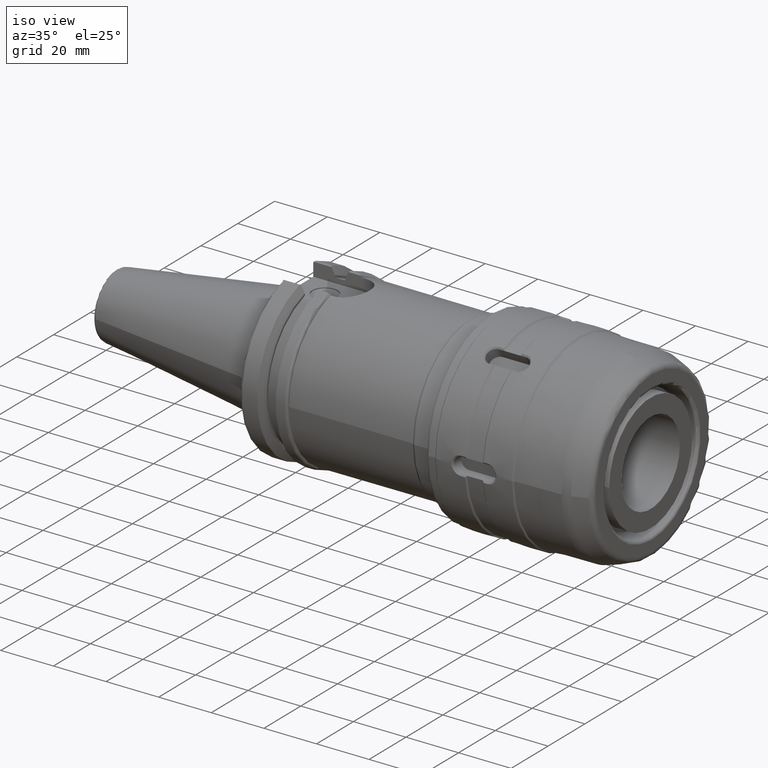
[diagram: clean part render]
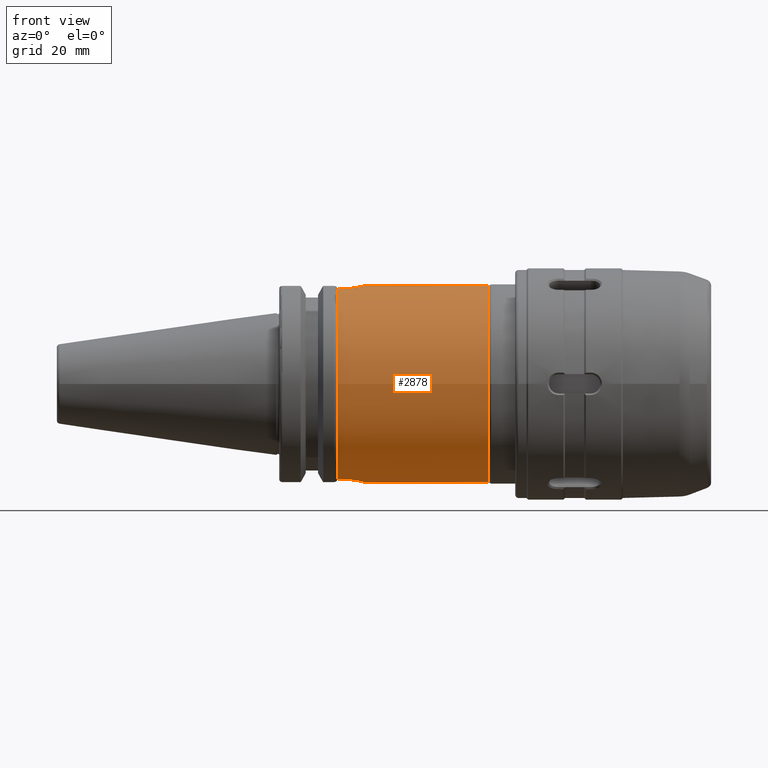
[diagram: tour spotlight — one face highlighted and labeled with its STEP entity id]
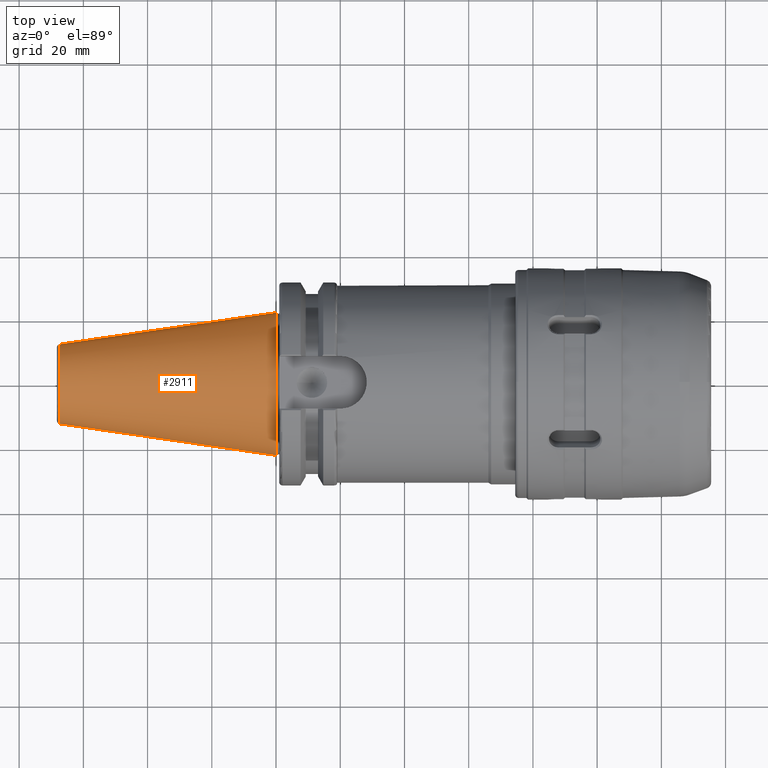
[diagram: tour spotlight — one face highlighted and labeled with its STEP entity id]
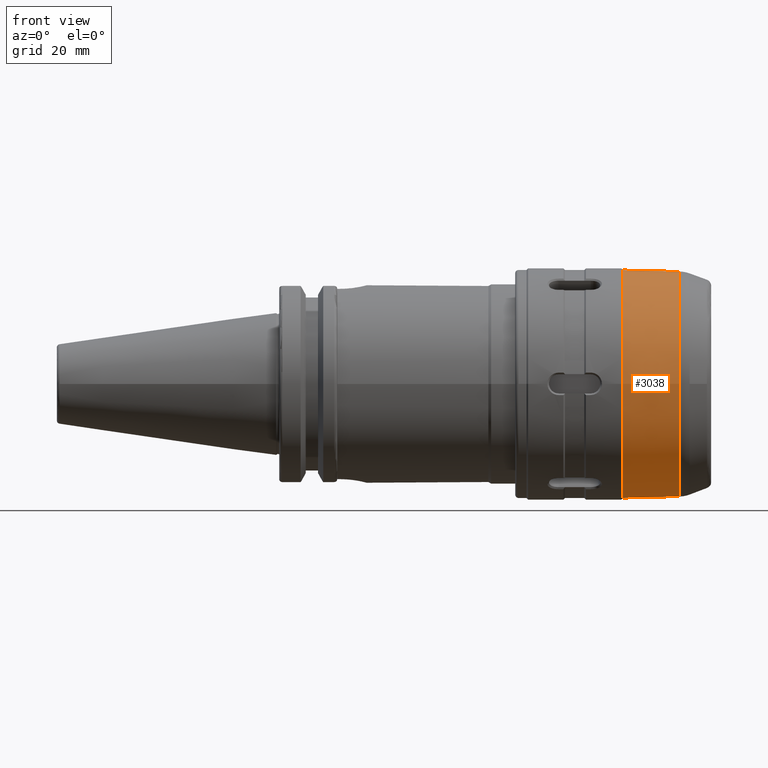
[diagram: tour spotlight — one face highlighted and labeled with its STEP entity id]
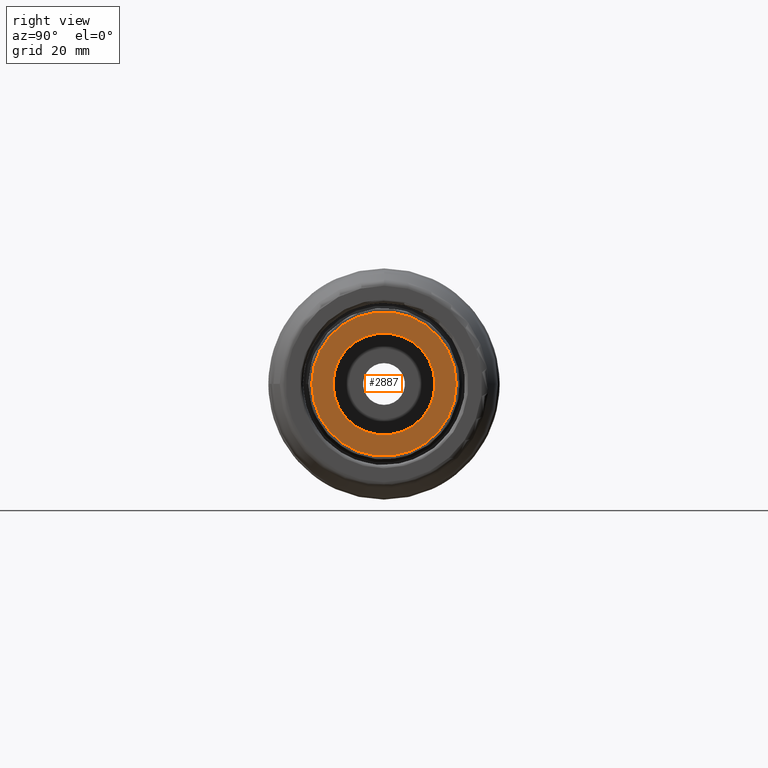
[diagram: tour spotlight — one face highlighted and labeled with its STEP entity id]
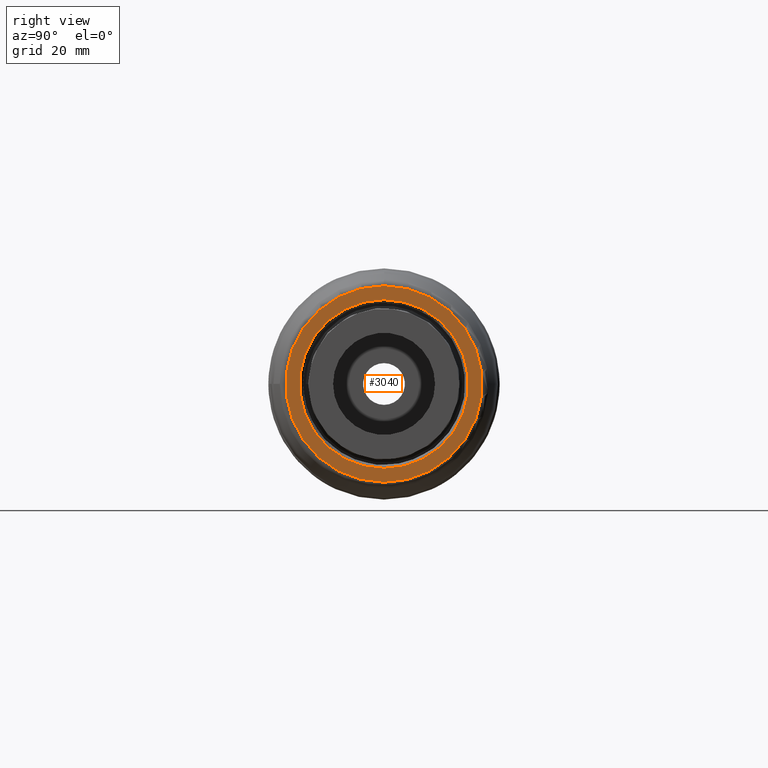
[diagram: tour spotlight — one face highlighted and labeled with its STEP entity id]
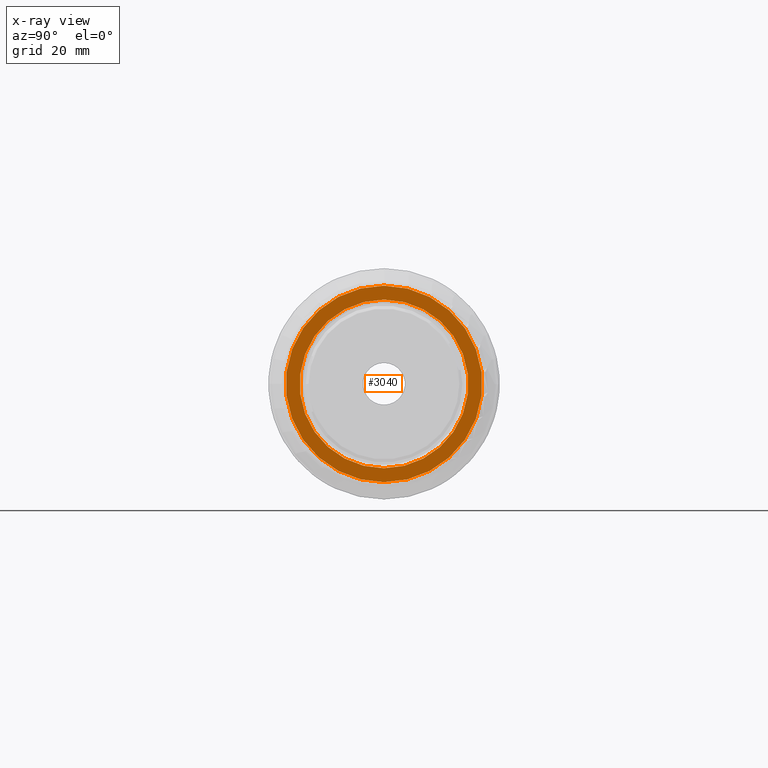
[diagram: x-ray of the same camera — body ghosted, this tour face saturated]
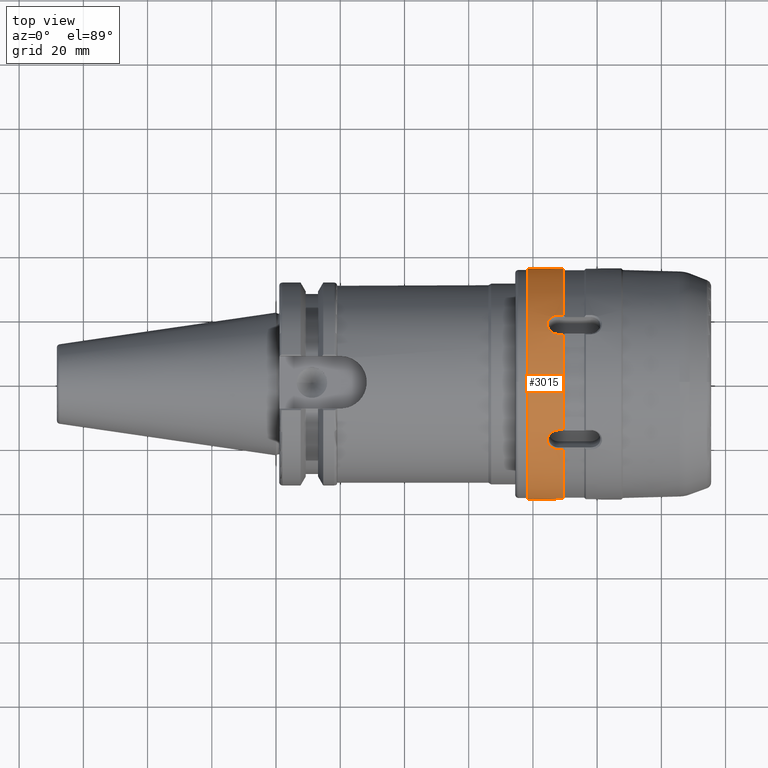
[diagram: tour spotlight — one face highlighted and labeled with its STEP entity id]
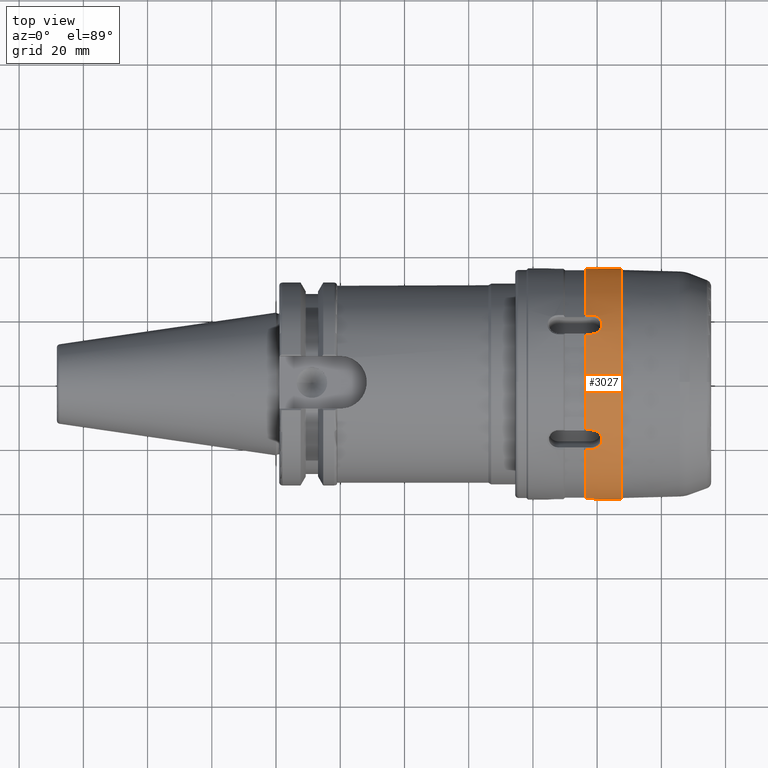
[diagram: tour spotlight — one face highlighted and labeled with its STEP entity id]
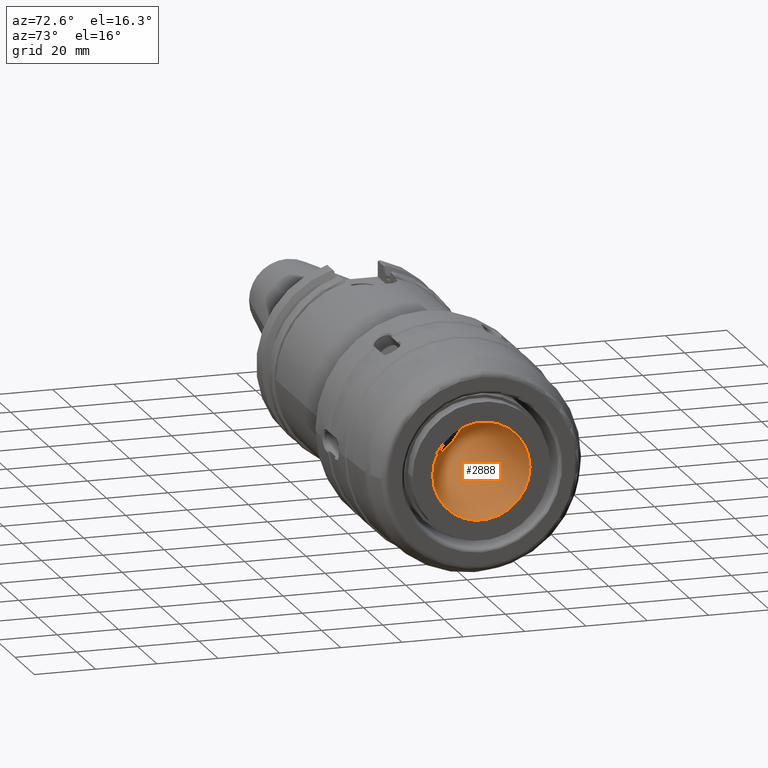
[diagram: tour spotlight — one face highlighted and labeled with its STEP entity id]
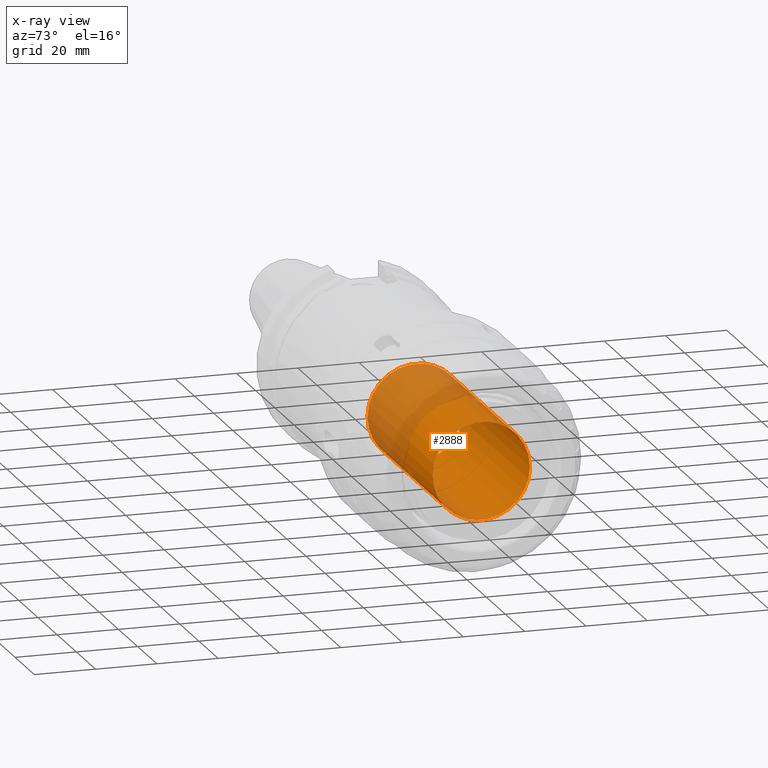
[diagram: x-ray of the same camera — body ghosted, this tour face saturated]
A machine part: a face-by-face anatomy tour. The part has 176 B-rep faces; the first image is the clean iso view, then the 8 largest visible faces are spotlighted one at a time (largest first), each with its STEP entity span.

Face 1 — front view, entity #2878. In plain terms, the highlighted cylindrical surface (bore or boss wall) has radius 30.75 mm, axis along (1, 0, 0).
Definition (entity closure, byte-faithful):
#220=FACE_OUTER_BOUND('',#396,.T.);
#396=EDGE_LOOP('',(#1948,#1949,#1950,#1951,#1952,#1953,#1954,#1955,#1956,
#1957,#1958,#1959));
#589=CIRCLE('',#3131,30.75);
#590=CIRCLE('',#3132,30.75);
#591=CIRCLE('',#3133,30.75);
#592=CIRCLE('',#3134,30.75);
#723=LINE('',#4289,#948);
#724=LINE('',#4293,#949);
#725=LINE('',#4314,#950);
#726=LINE('',#4317,#951);
#727=LINE('',#4319,#952);
#948=VECTOR('',#3442,30.75);
#949=VECTOR('',#3445,10.);
#950=VECTOR('',#3446,10.);
#951=VECTOR('',#3449,10.);
#952=VECTOR('',#3450,10.);
#1171=B_SPLINE_CURVE_WITH_KNOTS('',3,(#4262,#4263,#4264,#4265,#4266,#4267,
#4268,#4269,#4270,#4271,#4272,#4273,#4274,#4275,#4276,#4277,#4278,#4279),
 .UNSPECIFIED.,.F.,.F.,(4,2,2,2,2,2,2,2,4),(-2.4810097942713,-2.17085540581955,
-1.8607010173678,-1.55060295725172,-1.24050489713565,-0.930406837019574,
-0.6203087769035,-0.31015438845175,0.),.UNSPECIFIED.);
#1172=B_SPLINE_CURVE_WITH_KNOTS('',3,(#4295,#4296,#4297,#4298,#4299,#4300,
#4301,#4302,#4303,#4304,#4305,#4306,#4307,#4308,#4309,#4310,#4311,#4312),
 .UNSPECIFIED.,.F.,.F.,(4,2,2,2,2,2,2,2,4),(-2.4810097942713,-2.17085540581955,
-1.8607010173678,-1.55060295725172,-1.24050489713565,-0.930406837019574,
-0.6203087769035,-0.31015438845175,0.),.UNSPECIFIED.);
#1215=VERTEX_POINT('',#4260);
#1216=VERTEX_POINT('',#4261);
#1219=VERTEX_POINT('',#4286);
#1220=VERTEX_POINT('',#4288);
#1221=VERTEX_POINT('',#4290);
#1222=VERTEX_POINT('',#4292);
#1223=VERTEX_POINT('',#4294);
#1224=VERTEX_POINT('',#4313);
#1225=VERTEX_POINT('',#4315);
#1226=VERTEX_POINT('',#4318);
#1500=EDGE_CURVE('',#1215,#1216,#1171,.T.);
#1504=EDGE_CURVE('',#1219,#1219,#589,.T.);
#1505=EDGE_CURVE('',#1219,#1220,#723,.T.);
#1506=EDGE_CURVE('',#1221,#1220,#590,.T.);
#1507=EDGE_CURVE('',#1221,#1222,#724,.T.);
#1508=EDGE_CURVE('',#1222,#1223,#1172,.T.);
#1509=EDGE_CURVE('',#1223,#1224,#725,.T.);
#1510=EDGE_CURVE('',#1225,#1224,#591,.T.);
#1511=EDGE_CURVE('',#1225,#1215,#726,.T.);
#1512=EDGE_CURVE('',#1216,#1226,#727,.T.);
#1513=EDGE_CURVE('',#1220,#1226,#592,.T.);
#1948=ORIENTED_EDGE('',*,*,#1504,.F.);
#1949=ORIENTED_EDGE('',*,*,#1505,.T.);
#1950=ORIENTED_EDGE('',*,*,#1506,.F.);
#1951=ORIENTED_EDGE('',*,*,#1507,.T.);
#1952=ORIENTED_EDGE('',*,*,#1508,.T.);
#1953=ORIENTED_EDGE('',*,*,#1509,.T.);
#1954=ORIENTED_EDGE('',*,*,#1510,.F.);
#1955=ORIENTED_EDGE('',*,*,#1511,.T.);
#1956=ORIENTED_EDGE('',*,*,#1500,.T.);
#1957=ORIENTED_EDGE('',*,*,#1512,.T.);
#1958=ORIENTED_EDGE('',*,*,#1513,.F.);
#1959=ORIENTED_EDGE('',*,*,#1505,.F.);
#2833=CYLINDRICAL_SURFACE('',#3130,30.75);
#2878=ADVANCED_FACE('',(#220),#2833,.T.);
#3130=AXIS2_PLACEMENT_3D('',#4285,#3438,#3439);
#3131=AXIS2_PLACEMENT_3D('',#4287,#3440,#3441);
#3132=AXIS2_PLACEMENT_3D('',#4291,#3443,#3444);
#3133=AXIS2_PLACEMENT_3D('',#4316,#3447,#3448);
#3134=AXIS2_PLACEMENT_3D('',#4320,#3451,#3452);
#3438=DIRECTION('center_axis',(1.,0.,0.));
#3439=DIRECTION('ref_axis',(0.,1.,0.));
#3440=DIRECTION('center_axis',(1.,0.,0.));
#3441=DIRECTION('ref_axis',(0.,0.,-1.));
#3442=DIRECTION('',(-1.,0.,0.));
#3443=DIRECTION('center_axis',(-1.,0.,0.));
#3444=DIRECTION('ref_axis',(0.,-1.,1.60812264967664E-16));
#3445=DIRECTION('',(1.,0.,0.));
#3446=DIRECTION('',(-1.,0.,0.));
#3447=DIRECTION('center_axis',(-1.,0.,0.));
#3448=DIRECTION('ref_axis',(0.,1.,-6.12323399573677E-17));
#3449=DIRECTION('',(1.,0.,0.));
#3450=DIRECTION('',(-1.,0.,0.));
#3451=DIRECTION('center_axis',(-1.,0.,0.));
#3452=DIRECTION('ref_axis',(0.,-1.,1.60812264967664E-16));
#4260=CARTESIAN_POINT('',(20.05,8.19,29.6392712461019));
#4261=CARTESIAN_POINT('',(20.05,-8.19,29.6392712461019));
#4262=CARTESIAN_POINT('Ctrl Pts',(20.05,8.19,29.6392712461019));
#4263=CARTESIAN_POINT('Ctrl Pts',(21.0838479615058,8.19,29.6392712461019));
#4264=CARTESIAN_POINT('Ctrl Pts',(22.1829826385338,7.98235953589721,29.6990067489696));
#4265=CARTESIAN_POINT('Ctrl Pts',(24.1992237693008,7.14504217918169,29.9114933105893));
#4266=CARTESIAN_POINT('Ctrl Pts',(25.116793030236,6.51561604559969,30.0608269533852));
#4267=CARTESIAN_POINT('Ctrl Pts',(26.5654844824296,5.06692459340609,30.3386329147603));
#4268=CARTESIAN_POINT('Ctrl Pts',(27.1950129896444,4.14930094370248,30.4856199404514));
#4269=CARTESIAN_POINT('Ctrl Pts',(28.0324053220541,2.13286549972219,30.692680009589));
#4270=CARTESIAN_POINT('Ctrl Pts',(28.24,1.03366020038691,30.75));
#4271=CARTESIAN_POINT('Ctrl Pts',(28.24,-1.03366020038692,30.75));
#4272=CARTESIAN_POINT('Ctrl Pts',(28.0324053220541,-2.1328654997222,30.692680009589));
#4273=CARTESIAN_POINT('Ctrl Pts',(27.1950129896444,-4.14930094370248,30.4856199404514));
#4274=CARTESIAN_POINT('Ctrl Pts',(26.5654844824296,-5.06692459340609,30.3386329147603));
#4275=CARTESIAN_POINT('Ctrl Pts',(25.116793030236,-6.51561604559969,30.0608269533852));
#4276=CARTESIAN_POINT('Ctrl Pts',(24.1992237693008,-7.14504217918169,29.9114933105893));
#4277=CARTESIAN_POINT('Ctrl Pts',(22.1829826385338,-7.98235953589721,29.6990067489696));
#4278=CARTESIAN_POINT('Ctrl Pts',(21.0838479615058,-8.19,29.6392712461019));
#4279=CARTESIAN_POINT('Ctrl Pts',(20.05,-8.19,29.6392712461019));
#4285=CARTESIAN_POINT('Origin',(42.5919872981078,0.,0.));
#4286=CARTESIAN_POINT('',(66.1339745962156,-30.75,-3.76578890737811E-15));
#4287=CARTESIAN_POINT('Origin',(66.1339745962156,0.,0.));
#4288=CARTESIAN_POINT('',(19.05,-30.75,-3.76578890737811E-15));
#4289=CARTESIAN_POINT('',(42.5919872981078,-30.75,-3.76578890737811E-15));
#4290=CARTESIAN_POINT('',(19.05,-8.19,-29.6392712461019));
#4291=CARTESIAN_POINT('Origin',(19.05,0.,0.));
#4292=CARTESIAN_POINT('',(20.05,-8.19,-29.6392712461019));
#4293=CARTESIAN_POINT('',(42.5919872981078,-8.19,-29.6392712461019));
#4294=CARTESIAN_POINT('',(20.05,8.19,-29.6392712461019));
#4295=CARTESIAN_POINT('Ctrl Pts',(20.05,-8.19,-29.6392712461019));
#4296=CARTESIAN_POINT('Ctrl Pts',(21.0838479615058,-8.19,-29.6392712461019));
#4297=CARTESIAN_POINT('Ctrl Pts',(22.1829826385338,-7.98235953589721,-29.6990067489696));
#4298=CARTESIAN_POINT('Ctrl Pts',(24.1992237693008,-7.14504217918168,-29.9114933105894));
#4299=CARTESIAN_POINT('Ctrl Pts',(25.116793030236,-6.51561604559968,-30.0608269533852));
#4300=CARTESIAN_POINT('Ctrl Pts',(26.5654844824296,-5.06692459340609,-30.3386329147603));
#4301=CARTESIAN_POINT('Ctrl Pts',(27.1950129896444,-4.14930094370247,-30.4856199404514));
#4302=CARTESIAN_POINT('Ctrl Pts',(28.0324053220541,-2.13286549972219,-30.692680009589));
#4303=CARTESIAN_POINT('Ctrl Pts',(28.24,-1.03366020038691,-30.75));
#4304=CARTESIAN_POINT('Ctrl Pts',(28.24,1.03366020038692,-30.75));
#4305=CARTESIAN_POINT('Ctrl Pts',(28.0324053220541,2.13286549972219,-30.692680009589));
#4306=CARTESIAN_POINT('Ctrl Pts',(27.1950129896444,4.14930094370248,-30.4856199404514));
#4307=CARTESIAN_POINT('Ctrl Pts',(26.5654844824296,5.06692459340609,-30.3386329147603));
#4308=CARTESIAN_POINT('Ctrl Pts',(25.116793030236,6.51561604559969,-30.0608269533852));
#4309=CARTESIAN_POINT('Ctrl Pts',(24.1992237693008,7.14504217918169,-29.9114933105893));
#4310=CARTESIAN_POINT('Ctrl Pts',(22.1829826385338,7.98235953589721,-29.6990067489696));
#4311=CARTESIAN_POINT('Ctrl Pts',(21.0838479615058,8.19,-29.6392712461019));
#4312=CARTESIAN_POINT('Ctrl Pts',(20.05,8.19,-29.6392712461019));
#4313=CARTESIAN_POINT('',(19.05,8.19,-29.6392712461019));
#4314=CARTESIAN_POINT('',(42.5919872981078,8.18999999999999,-29.6392712461019));
#4315=CARTESIAN_POINT('',(19.05,8.19,29.6392712461019));
#4316=CARTESIAN_POINT('Origin',(19.05,0.,0.));
#4317=CARTESIAN_POINT('',(42.5919872981078,8.19000000000001,29.6392712461019));
#4318=CARTESIAN_POINT('',(19.05,-8.19,29.6392712461019));
#4319=CARTESIAN_POINT('',(42.5919872981078,-8.18999999999999,29.6392712461019));
#4320=CARTESIAN_POINT('Origin',(19.05,0.,0.));

Face 2 — top view, entity #2911. In plain terms, the highlighted conical surface has half-angle 8.297 deg.
Definition (entity closure, byte-faithful):
#191=CONICAL_SURFACE('',#3198,17.2484375,0.144812498238939);
#253=FACE_OUTER_BOUND('',#436,.T.);
#436=EDGE_LOOP('',(#2119,#2120,#2121,#2122,#2123));
#619=CIRCLE('',#3192,12.3966635780937);
#620=CIRCLE('',#3193,12.3966635780937);
#624=CIRCLE('',#3199,22.225);
#769=LINE('',#4641,#994);
#994=VECTOR('',#3624,17.2484375);
#1294=VERTEX_POINT('',#4628);
#1295=VERTEX_POINT('',#4629);
#1298=VERTEX_POINT('',#4639);
#1607=EDGE_CURVE('',#1294,#1295,#619,.T.);
#1608=EDGE_CURVE('',#1295,#1294,#620,.T.);
#1612=EDGE_CURVE('',#1298,#1298,#624,.T.);
#1613=EDGE_CURVE('',#1298,#1295,#769,.T.);
#2119=ORIENTED_EDGE('',*,*,#1612,.F.);
#2120=ORIENTED_EDGE('',*,*,#1613,.T.);
#2121=ORIENTED_EDGE('',*,*,#1607,.F.);
#2122=ORIENTED_EDGE('',*,*,#1608,.F.);
#2123=ORIENTED_EDGE('',*,*,#1613,.F.);
#2911=ADVANCED_FACE('',(#253),#191,.T.);
#3192=AXIS2_PLACEMENT_3D('',#4630,#3608,#3609);
#3193=AXIS2_PLACEMENT_3D('',#4631,#3610,#3611);
#3198=AXIS2_PLACEMENT_3D('',#4638,#3620,#3621);
#3199=AXIS2_PLACEMENT_3D('',#4640,#3622,#3623);
#3608=DIRECTION('center_axis',(-1.,0.,0.));
#3609=DIRECTION('ref_axis',(0.,-1.,3.06161699786838E-17));
#3610=DIRECTION('center_axis',(-1.,0.,0.));
#3611=DIRECTION('ref_axis',(0.,-1.,3.06161699786838E-17));
#3620=DIRECTION('center_axis',(1.,0.,0.));
#3621=DIRECTION('ref_axis',(0.,1.,0.));
#3622=DIRECTION('center_axis',(1.,0.,0.));
#3623=DIRECTION('ref_axis',(0.,0.,-1.));
#3624=DIRECTION('',(-0.989532981063282,0.144306893071729,1.76724974695192E-17));
#4628=CARTESIAN_POINT('',(-67.3943068930717,-1.5181534371019E-15,12.3966635780937));
#4629=CARTESIAN_POINT('',(-67.3943068930718,-12.3966635780937,-1.5181534371019E-15));
#4630=CARTESIAN_POINT('Origin',(-67.3943068930717,0.,-1.89769179637738E-15));
#4631=CARTESIAN_POINT('Origin',(-67.3943068930717,0.,-1.89769179637738E-15));
#4638=CARTESIAN_POINT('Origin',(-34.125,0.,0.));
#4639=CARTESIAN_POINT('',(0.,-22.225,-2.72177751110499E-15));
#4640=CARTESIAN_POINT('Origin',(0.,0.,0.));
#4641=CARTESIAN_POINT('',(-34.125,-17.2484375,-2.11232437746682E-15));

Face 3 — front view, entity #3038. In plain terms, the highlighted conical surface has half-angle 1.487 deg.
Definition (entity closure, byte-faithful):
#216=CONICAL_SURFACE('',#3396,35.25,0.0259579869490154);
#380=FACE_OUTER_BOUND('',#568,.T.);
#568=EDGE_LOOP('',(#2777,#2778,#2779,#2780,#2781));
#702=CIRCLE('',#3391,35.0423000871868);
#703=CIRCLE('',#3392,35.0423000871868);
#706=CIRCLE('',#3397,35.5);
#939=LINE('',#6358,#1164);
#1164=VECTOR('',#4188,35.25);
#1484=VERTEX_POINT('',#6345);
#1485=VERTEX_POINT('',#6347);
#1488=VERTEX_POINT('',#6357);
#1917=EDGE_CURVE('',#1484,#1485,#702,.T.);
#1918=EDGE_CURVE('',#1485,#1484,#703,.T.);
#1922=EDGE_CURVE('',#1485,#1488,#939,.T.);
#1923=EDGE_CURVE('',#1488,#1488,#706,.T.);
#2777=ORIENTED_EDGE('',*,*,#1918,.F.);
#2778=ORIENTED_EDGE('',*,*,#1922,.T.);
#2779=ORIENTED_EDGE('',*,*,#1923,.T.);
#2780=ORIENTED_EDGE('',*,*,#1922,.F.);
#2781=ORIENTED_EDGE('',*,*,#1917,.F.);
#3038=ADVANCED_FACE('',(#380),#216,.T.);
#3391=AXIS2_PLACEMENT_3D('',#6348,#4175,#4176);
#3392=AXIS2_PLACEMENT_3D('',#6349,#4177,#4178);
#3396=AXIS2_PLACEMENT_3D('',#6356,#4186,#4187);
#3397=AXIS2_PLACEMENT_3D('',#6359,#4189,#4190);
#4175=DIRECTION('center_axis',(1.,0.,0.));
#4176=DIRECTION('ref_axis',(0.,-1.,3.06161699786838E-17));
#4177=DIRECTION('center_axis',(1.,0.,0.));
#4178=DIRECTION('ref_axis',(0.,-1.,3.06161699786838E-17));
#4186=DIRECTION('center_axis',(-1.,0.,0.));
#4187=DIRECTION('ref_axis',(0.,1.,0.));
#4188=DIRECTION('',(-0.999663110374247,-0.025955071891372,-3.17857957134081E-18));
#4189=DIRECTION('center_axis',(1.,0.,0.));
#4190=DIRECTION('ref_axis',(0.,0.,-1.));
#6345=CARTESIAN_POINT('',(51.1283741526824,-4.29144406365343E-15,35.0423000871868));
#6347=CARTESIAN_POINT('',(51.1283741526824,-35.0423000871868,-4.29144406365343E-15));
#6348=CARTESIAN_POINT('Origin',(51.1283741526824,0.,-5.36430507956679E-15));
#6349=CARTESIAN_POINT('Origin',(51.1283741526824,0.,-5.36430507956679E-15));
#6356=CARTESIAN_POINT('Origin',(43.1287838708181,0.,0.));
#6357=CARTESIAN_POINT('',(33.5,-35.5,-4.3474961369731E-15));
#6358=CARTESIAN_POINT('',(43.1287838708181,-35.25,-4.31687996699442E-15));
#6359=CARTESIAN_POINT('Origin',(33.5,0.,0.));

Face 4 — right view, entity #2887. In plain terms, the highlighted planar face has unit normal (1, 0, 0).
Definition (entity closure, byte-faithful):
#96=FACE_BOUND('',#408,.T.);
#113=PLANE('',#3153);
#229=FACE_OUTER_BOUND('',#407,.T.);
#407=EDGE_LOOP('',(#1989));
#408=EDGE_LOOP('',(#1990));
#602=CIRCLE('',#3152,22.5);
#603=CIRCLE('',#3154,15.875);
#1237=VERTEX_POINT('',#4354);
#1238=VERTEX_POINT('',#4358);
#1529=EDGE_CURVE('',#1237,#1237,#602,.T.);
#1531=EDGE_CURVE('',#1238,#1238,#603,.T.);
#1989=ORIENTED_EDGE('',*,*,#1529,.T.);
#1990=ORIENTED_EDGE('',*,*,#1531,.F.);
#2887=ADVANCED_FACE('',(#229,#96),#113,.T.);
#3152=AXIS2_PLACEMENT_3D('',#4355,#3493,#3494);
#3153=AXIS2_PLACEMENT_3D('',#4357,#3496,#3497);
#3154=AXIS2_PLACEMENT_3D('',#4359,#3498,#3499);
#3493=DIRECTION('center_axis',(1.,0.,0.));
#3494=DIRECTION('ref_axis',(0.,0.,-1.));
#3496=DIRECTION('center_axis',(1.,0.,0.));
#3497=DIRECTION('ref_axis',(0.,0.,-1.));
#3498=DIRECTION('center_axis',(1.,0.,0.));
#3499=DIRECTION('ref_axis',(0.,0.,-1.));
#4354=CARTESIAN_POINT('',(135.,-22.5,-2.75545529808154E-15));
#4355=CARTESIAN_POINT('Origin',(135.,0.,0.));
#4357=CARTESIAN_POINT('Origin',(135.,15.875,0.));
#4358=CARTESIAN_POINT('',(135.,-15.875,-1.94412679364642E-15));
#4359=CARTESIAN_POINT('Origin',(135.,0.,0.));

Face 5 — right view, entity #3040. An x-ray twin of the same camera follows (body ghosted, this face saturated) — the face is partly hidden behind the body. In plain terms, the highlighted planar face has unit normal (1, 0, 0).
Definition (entity closure, byte-faithful):
#106=FACE_BOUND('',#571,.T.);
#183=PLANE('',#3401);
#382=FACE_OUTER_BOUND('',#570,.T.);
#570=EDGE_LOOP('',(#2787));
#571=EDGE_LOOP('',(#2788));
#707=CIRCLE('',#3399,30.5995849235806);
#709=CIRCLE('',#3402,26.2678800485097);
#1489=VERTEX_POINT('',#6361);
#1490=VERTEX_POINT('',#6365);
#1924=EDGE_CURVE('',#1489,#1489,#707,.T.);
#1926=EDGE_CURVE('',#1490,#1490,#709,.T.);
#2787=ORIENTED_EDGE('',*,*,#1924,.F.);
#2788=ORIENTED_EDGE('',*,*,#1926,.F.);
#3040=ADVANCED_FACE('',(#382,#106),#183,.T.);
#3399=AXIS2_PLACEMENT_3D('',#6362,#4193,#4194);
#3401=AXIS2_PLACEMENT_3D('',#6364,#4197,#4198);
#3402=AXIS2_PLACEMENT_3D('',#6366,#4199,#4200);
#4193=DIRECTION('center_axis',(-1.,0.,0.));
#4194=DIRECTION('ref_axis',(0.,-1.,1.83697019872103E-16));
#4197=DIRECTION('center_axis',(1.,0.,0.));
#4198=DIRECTION('ref_axis',(0.,0.,-1.));
#4199=DIRECTION('center_axis',(1.,0.,0.));
#4200=DIRECTION('ref_axis',(0.,-1.,1.83697019872103E-16));
#6361=CARTESIAN_POINT('',(61.,-3.74736837319006E-15,30.5995849235806));
#6362=CARTESIAN_POINT('Origin',(61.,0.,0.));
#6364=CARTESIAN_POINT('Origin',(61.,25.2505,0.));
#6365=CARTESIAN_POINT('',(61.,-3.21688752217941E-15,26.2678800485097));
#6366=CARTESIAN_POINT('Origin',(61.,0.,0.));

Face 6 — top view, entity #3015. In plain terms, the highlighted cylindrical surface (bore or boss wall) has radius 36 mm, axis along (1, 0, 0).
Definition (entity closure, byte-faithful):
#357=FACE_OUTER_BOUND('',#543,.T.);
#543=EDGE_LOOP('',(#2622,#2623,#2624,#2625,#2626,#2627,#2628,#2629,#2630,
#2631,#2632,#2633,#2634,#2635,#2636,#2637,#2638,#2639,#2640,#2641,#2642,
#2643,#2644,#2645,#2646,#2647,#2648,#2649));
#650=CIRCLE('',#3265,36.);
#656=CIRCLE('',#3281,36.);
#662=CIRCLE('',#3297,36.);
#668=CIRCLE('',#3313,36.);
#674=CIRCLE('',#3329,36.);
#679=CIRCLE('',#3348,36.);
#680=CIRCLE('',#3350,36.);
#809=LINE('',#4921,#1034);
#811=LINE('',#5013,#1036);
#833=LINE('',#5165,#1058);
#835=LINE('',#5257,#1060);
#857=LINE('',#5414,#1082);
#859=LINE('',#5523,#1084);
#881=LINE('',#5687,#1106);
#883=LINE('',#5779,#1108);
#905=LINE('',#5931,#1130);
#907=LINE('',#6023,#1132);
#913=LINE('',#6071,#1138);
#914=LINE('',#6074,#1139);
#915=LINE('',#6092,#1140);
#1034=VECTOR('',#3788,10.);
#1036=VECTOR('',#3792,10.);
#1058=VECTOR('',#3844,10.);
#1060=VECTOR('',#3848,10.);
#1082=VECTOR('',#3900,10.);
#1084=VECTOR('',#3904,10.);
#1106=VECTOR('',#3956,10.);
#1108=VECTOR('',#3960,10.);
#1130=VECTOR('',#4012,10.);
#1132=VECTOR('',#4016,10.);
#1138=VECTOR('',#4068,36.);
#1139=VECTOR('',#4071,10.);
#1140=VECTOR('',#4072,10.);
#1191=B_SPLINE_CURVE_WITH_KNOTS('',3,(#4980,#4981,#4982,#4983,#4984,#4985,
#4986,#4987,#4988,#4989,#4990,#4991,#4992,#4993),.UNSPECIFIED.,.F.,.F.,
(4,1,1,1,1,1,1,1,1,1,1,4),(-0.904498213413268,-0.775284182925658,-0.710677167681854,
-0.646070152438049,-0.516856121950439,-0.323035076219024,-0.306883322408073,
-0.290731568597122,-0.258428060975219,-0.193821045731414,-0.12921403048761,
2.40151940359921E-16),.UNSPECIFIED.);
#1195=B_SPLINE_CURVE_WITH_KNOTS('',3,(#5224,#5225,#5226,#5227,#5228,#5229,
#5230,#5231,#5232,#5233,#5234,#5235,#5236,#5237),.UNSPECIFIED.,.F.,.F.,
(4,1,1,1,1,1,1,1,1,1,1,4),(-0.904498213413268,-0.775284182925658,-0.710677167681853,
-0.646070152438049,-0.613766644816146,-0.597614891005195,-0.581463137194244,
-0.387642091462829,-0.258428060975219,-0.193821045731414,-0.129214030487609,
4.43449221175667E-16),.UNSPECIFIED.);
#1200=B_SPLINE_CURVE_WITH_KNOTS('',3,(#5482,#5483,#5484,#5485,#5486,#5487,
#5488,#5489,#5490,#5491,#5492),.UNSPECIFIED.,.F.,.F.,(4,1,1,1,1,1,1,1,4),
(-0.904498213413269,-0.775284182925659,-0.726828921492805,-0.646070152438049,
-0.613766644816146,-0.581463137194244,-0.557235506477817,-0.516856121950439,
-0.452216093061957),.UNSPECIFIED.);
#1201=B_SPLINE_CURVE_WITH_KNOTS('',3,(#5493,#5494,#5495,#5496,#5497,#5498,
#5499,#5500,#5501),.UNSPECIFIED.,.F.,.F.,(4,1,1,1,1,1,4),(-0.452216093061957,
-0.387642091462829,-0.323035076219024,-0.298807445502597,-0.258428060975219,
-0.129214030487609,4.58444066344065E-16),.UNSPECIFIED.);
#1205=B_SPLINE_CURVE_WITH_KNOTS('',3,(#5746,#5747,#5748,#5749,#5750,#5751,
#5752,#5753,#5754,#5755,#5756,#5757,#5758,#5759),.UNSPECIFIED.,.F.,.F.,
(4,1,1,1,1,1,1,1,1,1,1,4),(-0.904498213413268,-0.775284182925658,-0.710677167681853,
-0.646070152438048,-0.613766644816146,-0.597614891005195,-0.581463137194244,
-0.387642091462829,-0.258428060975219,-0.193821045731414,-0.129214030487609,
6.49203849176561E-16),.UNSPECIFIED.);
#1209=B_SPLINE_CURVE_WITH_KNOTS('',3,(#5990,#5991,#5992,#5993,#5994,#5995,
#5996,#5997,#5998,#5999,#6000,#6001,#6002,#6003),.UNSPECIFIED.,.F.,.F.,
(4,1,1,1,1,1,1,1,1,1,1,4),(-0.904498213413268,-0.775284182925658,-0.710677167681854,
-0.646070152438049,-0.613766644816146,-0.597614891005195,-0.581463137194244,
-0.387642091462829,-0.258428060975219,-0.193821045731414,-0.12921403048761,
2.22044604925031E-16),.UNSPECIFIED.);
#1211=B_SPLINE_CURVE_WITH_KNOTS('',3,(#6076,#6077,#6078,#6079,#6080,#6081,
#6082,#6083,#6084,#6085,#6086,#6087,#6088,#6089,#6090,#6091),
 .UNSPECIFIED.,.F.,.F.,(4,1,1,1,1,1,1,1,1,1,1,1,1,4),(-0.904498213413268,
-0.775284182925658,-0.726828921492804,-0.646070152438048,-0.613766644816146,
-0.581463137194243,-0.557235506477817,-0.516856121950439,-0.387642091462829,
-0.323035076219024,-0.298807445502597,-0.258428060975219,-0.129214030487609,
4.58444066344065E-16),.UNSPECIFIED.);
#1343=VERTEX_POINT('',#4915);
#1344=VERTEX_POINT('',#4919);
#1345=VERTEX_POINT('',#4978);
#1346=VERTEX_POINT('',#5009);
#1349=VERTEX_POINT('',#5019);
#1368=VERTEX_POINT('',#5163);
#1369=VERTEX_POINT('',#5222);
#1370=VERTEX_POINT('',#5253);
#1373=VERTEX_POINT('',#5263);
#1393=VERTEX_POINT('',#5412);
#1394=VERTEX_POINT('',#5479);
#1395=VERTEX_POINT('',#5481);
#1396=VERTEX_POINT('',#5519);
#1399=VERTEX_POINT('',#5529);
#1418=VERTEX_POINT('',#5685);
#1419=VERTEX_POINT('',#5744);
#1420=VERTEX_POINT('',#5775);
#1423=VERTEX_POINT('',#5785);
#1442=VERTEX_POINT('',#5929);
#1443=VERTEX_POINT('',#5988);
#1444=VERTEX_POINT('',#6019);
#1447=VERTEX_POINT('',#6029);
#1452=VERTEX_POINT('',#6062);
#1454=VERTEX_POINT('',#6070);
#1455=VERTEX_POINT('',#6073);
#1456=VERTEX_POINT('',#6075);
#1691=EDGE_CURVE('',#1344,#1343,#809,.T.);
#1693=EDGE_CURVE('',#1345,#1344,#1191,.T.);
#1696=EDGE_CURVE('',#1346,#1345,#811,.T.);
#1700=EDGE_CURVE('',#1349,#1346,#650,.T.);
#1729=EDGE_CURVE('',#1368,#1349,#833,.T.);
#1731=EDGE_CURVE('',#1369,#1368,#1195,.T.);
#1734=EDGE_CURVE('',#1370,#1369,#835,.T.);
#1738=EDGE_CURVE('',#1373,#1370,#656,.T.);
#1768=EDGE_CURVE('',#1393,#1373,#857,.T.);
#1770=EDGE_CURVE('',#1394,#1395,#1200,.T.);
#1771=EDGE_CURVE('',#1395,#1393,#1201,.T.);
#1774=EDGE_CURVE('',#1396,#1394,#859,.T.);
#1778=EDGE_CURVE('',#1399,#1396,#662,.T.);
#1807=EDGE_CURVE('',#1418,#1399,#881,.T.);
#1809=EDGE_CURVE('',#1419,#1418,#1205,.T.);
#1812=EDGE_CURVE('',#1420,#1419,#883,.T.);
#1816=EDGE_CURVE('',#1423,#1420,#668,.T.);
#1845=EDGE_CURVE('',#1442,#1423,#905,.T.);
#1847=EDGE_CURVE('',#1443,#1442,#1209,.T.);
#1850=EDGE_CURVE('',#1444,#1443,#907,.T.);
#1854=EDGE_CURVE('',#1447,#1444,#674,.T.);
#1863=EDGE_CURVE('',#1343,#1452,#679,.T.);
#1866=EDGE_CURVE('',#1395,#1454,#913,.T.);
#1867=EDGE_CURVE('',#1454,#1454,#680,.T.);
#1868=EDGE_CURVE('',#1455,#1447,#914,.T.);
#1869=EDGE_CURVE('',#1456,#1455,#1211,.T.);
#1870=EDGE_CURVE('',#1452,#1456,#915,.T.);
#2622=ORIENTED_EDGE('',*,*,#1696,.F.);
#2623=ORIENTED_EDGE('',*,*,#1700,.F.);
#2624=ORIENTED_EDGE('',*,*,#1729,.F.);
#2625=ORIENTED_EDGE('',*,*,#1731,.F.);
#2626=ORIENTED_EDGE('',*,*,#1734,.F.);
#2627=ORIENTED_EDGE('',*,*,#1738,.F.);
#2628=ORIENTED_EDGE('',*,*,#1768,.F.);
#2629=ORIENTED_EDGE('',*,*,#1771,.F.);
#2630=ORIENTED_EDGE('',*,*,#1866,.T.);
#2631=ORIENTED_EDGE('',*,*,#1867,.T.);
#2632=ORIENTED_EDGE('',*,*,#1866,.F.);
#2633=ORIENTED_EDGE('',*,*,#1770,.F.);
#2634=ORIENTED_EDGE('',*,*,#1774,.F.);
#2635=ORIENTED_EDGE('',*,*,#1778,.F.);
#2636=ORIENTED_EDGE('',*,*,#1807,.F.);
#2637=ORIENTED_EDGE('',*,*,#1809,.F.);
#2638=ORIENTED_EDGE('',*,*,#1812,.F.);
#2639=ORIENTED_EDGE('',*,*,#1816,.F.);
#2640=ORIENTED_EDGE('',*,*,#1845,.F.);
#2641=ORIENTED_EDGE('',*,*,#1847,.F.);
#2642=ORIENTED_EDGE('',*,*,#1850,.F.);
#2643=ORIENTED_EDGE('',*,*,#1854,.F.);
#2644=ORIENTED_EDGE('',*,*,#1868,.F.);
#2645=ORIENTED_EDGE('',*,*,#1869,.F.);
#2646=ORIENTED_EDGE('',*,*,#1870,.F.);
#2647=ORIENTED_EDGE('',*,*,#1863,.F.);
#2648=ORIENTED_EDGE('',*,*,#1691,.F.);
#2649=ORIENTED_EDGE('',*,*,#1693,.F.);
#2867=CYLINDRICAL_SURFACE('',#3349,36.);
#3015=ADVANCED_FACE('',(#357),#2867,.T.);
#3265=AXIS2_PLACEMENT_3D('',#5023,#3798,#3799);
#3281=AXIS2_PLACEMENT_3D('',#5267,#3854,#3855);
#3297=AXIS2_PLACEMENT_3D('',#5533,#3910,#3911);
#3313=AXIS2_PLACEMENT_3D('',#5789,#3966,#3967);
#3329=AXIS2_PLACEMENT_3D('',#6033,#4022,#4023);
#3348=AXIS2_PLACEMENT_3D('',#6063,#4063,#4064);
#3349=AXIS2_PLACEMENT_3D('',#6069,#4066,#4067);
#3350=AXIS2_PLACEMENT_3D('',#6072,#4069,#4070);
#3788=DIRECTION('',(1.,0.,0.));
#3792=DIRECTION('',(-1.,0.,0.));
#3798=DIRECTION('center_axis',(1.,0.,0.));
#3799=DIRECTION('ref_axis',(0.,0.,-1.));
#3844=DIRECTION('',(1.,0.,0.));
#3848=DIRECTION('',(-1.,0.,0.));
#3854=DIRECTION('center_axis',(1.,0.,0.));
#3855=DIRECTION('ref_axis',(0.,0.,-1.));
#3900=DIRECTION('',(1.,0.,0.));
#3904=DIRECTION('',(-1.,0.,0.));
#3910=DIRECTION('center_axis',(1.,0.,0.));
#3911=DIRECTION('ref_axis',(0.,0.,-1.));
#3956=DIRECTION('',(1.,0.,0.));
#3960=DIRECTION('',(-1.,0.,0.));
#3966=DIRECTION('center_axis',(1.,0.,0.));
#3967=DIRECTION('ref_axis',(0.,0.,-1.));
#4012=DIRECTION('',(1.,0.,0.));
#4016=DIRECTION('',(-1.,0.,0.));
#4022=DIRECTION('center_axis',(1.,0.,0.));
#4023=DIRECTION('ref_axis',(0.,0.,-1.));
#4063=DIRECTION('center_axis',(1.,0.,0.));
#4064=DIRECTION('ref_axis',(0.,0.,-1.));
#4066=DIRECTION('center_axis',(1.,0.,0.));
#4067=DIRECTION('ref_axis',(0.,1.,0.));
#4068=DIRECTION('',(-1.,0.,0.));
#4069=DIRECTION('center_axis',(1.,0.,0.));
#4070=DIRECTION('ref_axis',(0.,0.,-1.));
#4071=DIRECTION('',(1.,0.,0.));
#4072=DIRECTION('',(-1.,0.,0.));
#4915=CARTESIAN_POINT('',(15.,20.9441499978229,-29.2804129217587));
#4919=CARTESIAN_POINT('',(13.5,20.9441499978229,-29.2804129217587));
#4921=CARTESIAN_POINT('',(9.5,20.9441499978229,-29.2804129217587));
#4978=CARTESIAN_POINT('',(13.5,14.8855064246296,-32.7783724196659));
#4980=CARTESIAN_POINT('Ctrl Pts',(13.5,14.8855064246296,-32.7783724196659));
#4981=CARTESIAN_POINT('Ctrl Pts',(12.9972521683272,14.8855064246296,-32.7783724196659));
#4982=CARTESIAN_POINT('Ctrl Pts',(12.1867152547311,15.0465808253346,-32.7063301320407));
#4983=CARTESIAN_POINT('Ctrl Pts',(11.2871096756495,15.5728183853847,-32.4585189029498));
#4984=CARTESIAN_POINT('Ctrl Pts',(10.5723130043137,16.2115860675684,-32.1472574245));
#4985=CARTESIAN_POINT('Ctrl Pts',(9.83835357812791,17.5483970024069,-31.4558695818307));
#4986=CARTESIAN_POINT('Ctrl Pts',(10.010725689324,18.7447950115203,-30.7440378063095));
#4987=CARTESIAN_POINT('Ctrl Pts',(10.4394555787356,19.4514600932953,-30.2926365786416));
#4988=CARTESIAN_POINT('Ctrl Pts',(10.5744909669957,19.6421993813214,-30.1695095508561));
#4989=CARTESIAN_POINT('Ctrl Pts',(10.8439351013722,19.9569314411047,-29.9630386493152));
#4990=CARTESIAN_POINT('Ctrl Pts',(11.2840399978448,20.322816164602,-29.71629769605));
#4991=CARTESIAN_POINT('Ctrl Pts',(12.1889900052381,20.8014844368716,-29.383679520579));
#4992=CARTESIAN_POINT('Ctrl Pts',(12.9972521683273,20.944149997823,-29.2804129217587));
#4993=CARTESIAN_POINT('Ctrl Pts',(13.5,20.944149997823,-29.2804129217587));
#5009=CARTESIAN_POINT('',(15.,14.8855064246297,-32.7783724196658));
#5013=CARTESIAN_POINT('',(9.5,14.8855064246297,-32.7783724196658));
#5019=CARTESIAN_POINT('',(15.,-14.8855064246297,-32.7783724196658));
#5023=CARTESIAN_POINT('Origin',(15.,0.,0.));
#5163=CARTESIAN_POINT('',(13.5,-14.8855064246297,-32.7783724196658));
#5165=CARTESIAN_POINT('',(9.5,-14.8855064246297,-32.7783724196658));
#5222=CARTESIAN_POINT('',(13.5,-20.944149997823,-29.2804129217586));
#5224=CARTESIAN_POINT('Ctrl Pts',(13.5,-20.944149997823,-29.2804129217586));
#5225=CARTESIAN_POINT('Ctrl Pts',(12.9972521683272,-20.944149997823,-29.2804129217586));
#5226=CARTESIAN_POINT('Ctrl Pts',(12.1889900052381,-20.8014844368717,-29.3836795205789));
#5227=CARTESIAN_POINT('Ctrl Pts',(11.2840399978448,-20.322816164602,-29.71629769605));
#5228=CARTESIAN_POINT('Ctrl Pts',(10.8439351013722,-19.9569314411048,-29.9630386493152));
#5229=CARTESIAN_POINT('Ctrl Pts',(10.5744909669957,-19.6421993813214,-30.1695095508561));
#5230=CARTESIAN_POINT('Ctrl Pts',(10.4394555787356,-19.4514600932953,-30.2926365786415));
#5231=CARTESIAN_POINT('Ctrl Pts',(10.010725689324,-18.7447950115204,-30.7440378063095));
#5232=CARTESIAN_POINT('Ctrl Pts',(9.83835357812793,-17.5483970024068,-31.4558695818307));
#5233=CARTESIAN_POINT('Ctrl Pts',(10.5723130043137,-16.2115860675684,-32.1472574245));
#5234=CARTESIAN_POINT('Ctrl Pts',(11.2871096756495,-15.5728183853847,-32.4585189029498));
#5235=CARTESIAN_POINT('Ctrl Pts',(12.1867152547311,-15.0465808253347,-32.7063301320407));
#5236=CARTESIAN_POINT('Ctrl Pts',(12.9972521683273,-14.8855064246296,-32.7783724196658));
#5237=CARTESIAN_POINT('Ctrl Pts',(13.5,-14.8855064246296,-32.7783724196658));
#5253=CARTESIAN_POINT('',(15.,-20.9441499978229,-29.2804129217587));
#5257=CARTESIAN_POINT('',(9.5,-20.9441499978229,-29.2804129217587));
#5263=CARTESIAN_POINT('',(15.,-35.8296564224526,-3.49795949790708));
#5267=CARTESIAN_POINT('Origin',(15.,0.,0.));
#5412=CARTESIAN_POINT('',(13.5,-35.8296564224526,-3.49795949790708));
#5414=CARTESIAN_POINT('',(9.5,-35.8296564224526,-3.49795949790708));
#5479=CARTESIAN_POINT('',(13.5,-35.8288459754601,3.49707228605045));
#5481=CARTESIAN_POINT('',(9.99893174977746,-35.9993197320607,-2.64261096473109E-7));
#5482=CARTESIAN_POINT('Ctrl Pts',(13.5,-35.8287264687936,3.49694145981206));
#5483=CARTESIAN_POINT('Ctrl Pts',(12.9973871641779,-35.8287264687936,3.49694145981206));
#5484=CARTESIAN_POINT('Ctrl Pts',(12.2580158274562,-35.8451826877777,3.33939142542943));
#5485=CARTESIAN_POINT('Ctrl Pts',(11.3372523958506,-35.8919692780045,2.78688120378297));
#5486=CARTESIAN_POINT('Ctrl Pts',(10.8799372449823,-35.9234097884213,2.35352378312314));
#5487=CARTESIAN_POINT('Ctrl Pts',(10.5357135461455,-35.950748545694,1.87416683621229));
#5488=CARTESIAN_POINT('Ctrl Pts',(10.3580360658721,-35.9659464194352,1.55357497771753));
#5489=CARTESIAN_POINT('Ctrl Pts',(10.1991008823713,-35.9801360293224,1.18733825353044));
#5490=CARTESIAN_POINT('Ctrl Pts',(10.0462044632122,-35.994617603932,0.67211119361652));
#5491=CARTESIAN_POINT('Ctrl Pts',(9.99902794220315,-35.9990930795787,0.25586662590177));
#5492=CARTESIAN_POINT('Ctrl Pts',(9.99909695917251,-35.9990965868709,-2.55967763013176E-7));
#5493=CARTESIAN_POINT('Ctrl Pts',(9.99807427472978,-36.0001188498842,-3.4292751274756E-7));
#5494=CARTESIAN_POINT('Ctrl Pts',(9.99814323630825,-36.0001223556394,-0.255686781757665));
#5495=CARTESIAN_POINT('Ctrl Pts',(10.0564095885147,-35.9946337729397,-0.766523470374395));
#5496=CARTESIAN_POINT('Ctrl Pts',(10.2632861680904,-35.9751129601237,-1.3743078524539));
#5497=CARTESIAN_POINT('Ctrl Pts',(10.5173378710727,-35.9532733068714,-1.84452827995064));
#5498=CARTESIAN_POINT('Ctrl Pts',(10.9606112967678,-35.9177460317239,-2.48430627668947));
#5499=CARTESIAN_POINT('Ctrl Pts',(11.9082913422505,-35.854770249831,-3.25258298941112));
#5500=CARTESIAN_POINT('Ctrl Pts',(12.9972521683273,-35.8296564224526,-3.4979594979072));
#5501=CARTESIAN_POINT('Ctrl Pts',(13.5,-35.8296564224526,-3.4979594979072));
#5519=CARTESIAN_POINT('',(15.,-35.8296564224526,3.49795949790708));
#5523=CARTESIAN_POINT('',(9.5,-35.8296564224526,3.49795949790708));
#5529=CARTESIAN_POINT('',(15.,-20.9441499978229,29.2804129217587));
#5533=CARTESIAN_POINT('Origin',(15.,0.,0.));
#5685=CARTESIAN_POINT('',(13.5,-20.9441499978229,29.2804129217587));
#5687=CARTESIAN_POINT('',(9.5,-20.9441499978229,29.2804129217587));
#5744=CARTESIAN_POINT('',(13.5,-14.8855064246296,32.7783724196658));
#5746=CARTESIAN_POINT('Ctrl Pts',(13.5,-14.8855064246296,32.7783724196658));
#5747=CARTESIAN_POINT('Ctrl Pts',(12.9972521683272,-14.8855064246296,32.7783724196658));
#5748=CARTESIAN_POINT('Ctrl Pts',(12.1889900724119,-15.046270881752,32.706453622393));
#5749=CARTESIAN_POINT('Ctrl Pts',(11.284040054161,-15.5736608069462,32.4582238253811));
#5750=CARTESIAN_POINT('Ctrl Pts',(10.8439352166878,-15.9702870708554,32.2647288505884));
#5751=CARTESIAN_POINT('Ctrl Pts',(10.5744910875801,-16.3064621306966,32.0953983501824));
#5752=CARTESIAN_POINT('Ctrl Pts',(10.4394557020427,-16.5084629065168,31.9917767963788));
#5753=CARTESIAN_POINT('Ctrl Pts',(10.0107258065006,-17.2527203293302,31.6054875226364));
#5754=CARTESIAN_POINT('Ctrl Pts',(9.83835366046437,-18.467383404991,30.925292542417));
#5755=CARTESIAN_POINT('Ctrl Pts',(10.572313176387,-19.7345482698134,30.1132742533064));
#5756=CARTESIAN_POINT('Ctrl Pts',(11.28710977976,-20.3234924764895,29.7157159440822));
#5757=CARTESIAN_POINT('Ctrl Pts',(12.1867153561772,-20.8012220932652,29.3838864547692));
#5758=CARTESIAN_POINT('Ctrl Pts',(12.9972521683273,-20.944149997823,29.2804129217586));
#5759=CARTESIAN_POINT('Ctrl Pts',(13.5,-20.944149997823,29.2804129217586));
#5775=CARTESIAN_POINT('',(15.,-14.8855064246297,32.7783724196658));
#5779=CARTESIAN_POINT('',(9.5,-14.8855064246297,32.7783724196658));
#5785=CARTESIAN_POINT('',(15.,14.8855064246297,32.7783724196658));
#5789=CARTESIAN_POINT('Origin',(15.,0.,0.));
#5929=CARTESIAN_POINT('',(13.5,14.8855064246297,32.7783724196658));
#5931=CARTESIAN_POINT('',(9.5,14.8855064246297,32.7783724196658));
#5988=CARTESIAN_POINT('',(13.5,20.944149997823,29.2804129217586));
#5990=CARTESIAN_POINT('Ctrl Pts',(13.5,20.944149997823,29.2804129217586));
#5991=CARTESIAN_POINT('Ctrl Pts',(12.9972521683272,20.944149997823,29.2804129217586));
#5992=CARTESIAN_POINT('Ctrl Pts',(12.1889900052382,20.8014844368717,29.383679520579));
#5993=CARTESIAN_POINT('Ctrl Pts',(11.2840399978448,20.3228161646021,29.71629769605));
#5994=CARTESIAN_POINT('Ctrl Pts',(10.8439351013722,19.9569314411048,29.9630386493153));
#5995=CARTESIAN_POINT('Ctrl Pts',(10.5744909669957,19.6421993813214,30.1695095508562));
#5996=CARTESIAN_POINT('Ctrl Pts',(10.4394555787357,19.4514600932954,30.2926365786417));
#5997=CARTESIAN_POINT('Ctrl Pts',(10.010725689324,18.7447950115204,30.7440378063096));
#5998=CARTESIAN_POINT('Ctrl Pts',(9.83835357812793,17.548397002407,31.4558695818307));
#5999=CARTESIAN_POINT('Ctrl Pts',(10.5723130043137,16.2115860675684,32.1472574245));
#6000=CARTESIAN_POINT('Ctrl Pts',(11.2871096756495,15.5728183853847,32.4585189029498));
#6001=CARTESIAN_POINT('Ctrl Pts',(12.1867152547311,15.0465808253347,32.7063301320407));
#6002=CARTESIAN_POINT('Ctrl Pts',(12.9972521683273,14.8855064246296,32.7783724196658));
#6003=CARTESIAN_POINT('Ctrl Pts',(13.5,14.8855064246296,32.7783724196658));
#6019=CARTESIAN_POINT('',(15.,20.9441499978229,29.2804129217587));
#6023=CARTESIAN_POINT('',(9.5,20.9441499978229,29.2804129217587));
#6029=CARTESIAN_POINT('',(15.,35.8296564224526,3.49795949790708));
#6033=CARTESIAN_POINT('Origin',(15.,0.,0.));
#6062=CARTESIAN_POINT('',(15.,35.8296564224526,-3.49795949790708));
#6063=CARTESIAN_POINT('Origin',(15.,0.,0.));
#6069=CARTESIAN_POINT('Origin',(9.5,0.,0.));
#6070=CARTESIAN_POINT('',(3.99999999999999,-36.,-4.40872847693047E-15));
#6071=CARTESIAN_POINT('',(9.5,-36.,-4.40872847693047E-15));
#6072=CARTESIAN_POINT('Origin',(3.99999999999999,0.,0.));
#6073=CARTESIAN_POINT('',(13.5,35.8296564224526,3.49795949790708));
#6074=CARTESIAN_POINT('',(9.5,35.8296564224526,3.49795949790708));
#6075=CARTESIAN_POINT('',(13.5,35.8296564224526,-3.4979594979072));
#6076=CARTESIAN_POINT('Ctrl Pts',(13.5,35.8296564224526,-3.4979594979072));
#6077=CARTESIAN_POINT('Ctrl Pts',(12.9972521683272,35.8296564224526,-3.4979594979072));
#6078=CARTESIAN_POINT('Ctrl Pts',(12.2576817837725,35.8461211712504,-3.34037272210413));
#6079=CARTESIAN_POINT('Ctrl Pts',(11.3366540248531,35.8929326159493,-2.78771916234432));
#6080=CARTESIAN_POINT('Ctrl Pts',(10.8792003391659,35.9243901145823,-2.35424260946799));
#6081=CARTESIAN_POINT('Ctrl Pts',(10.5348679398996,35.9517438676511,-1.8747465139785));
#6082=CARTESIAN_POINT('Ctrl Pts',(10.3571329696212,35.9669501488857,-1.55405901363637));
#6083=CARTESIAN_POINT('Ctrl Pts',(10.1981455359682,35.9811476528476,-1.18771083056656));
#6084=CARTESIAN_POINT('Ctrl Pts',(9.96878231225858,36.0028766519832,-0.414827855426294));
#6085=CARTESIAN_POINT('Ctrl Pts',(9.96924039503781,36.0028590322353,0.510428389421512));
#6086=CARTESIAN_POINT('Ctrl Pts',(10.2632861680904,35.9751129601237,1.37430785245391));
#6087=CARTESIAN_POINT('Ctrl Pts',(10.5173378710727,35.9532733068714,1.84452827995064));
#6088=CARTESIAN_POINT('Ctrl Pts',(10.9606112967678,35.9177460317239,2.48430627668948));
#6089=CARTESIAN_POINT('Ctrl Pts',(11.9082913422505,35.854770249831,3.25258298941114));
#6090=CARTESIAN_POINT('Ctrl Pts',(12.9972521683273,35.8296564224526,3.49795949790721));
#6091=CARTESIAN_POINT('Ctrl Pts',(13.5,35.8296564224526,3.49795949790721));
#6092=CARTESIAN_POINT('',(9.5,35.8296564224526,-3.49795949790708));

Face 7 — top view, entity #3027. In plain terms, the highlighted cylindrical surface (bore or boss wall) has radius 36 mm, axis along (1, 0, 0).
Definition (entity closure, byte-faithful):
#369=FACE_OUTER_BOUND('',#555,.T.);
#555=EDGE_LOOP('',(#2702,#2703,#2704,#2705,#2706,#2707,#2708,#2709,#2710,
#2711,#2712,#2713,#2714,#2715,#2716,#2717,#2718,#2719,#2720,#2721,#2722,
#2723,#2724,#2725,#2726,#2727,#2728,#2729));
#647=CIRCLE('',#3256,36.);
#652=CIRCLE('',#3271,36.);
#658=CIRCLE('',#3287,36.);
#664=CIRCLE('',#3303,36.);
#670=CIRCLE('',#3319,36.);
#676=CIRCLE('',#3338,36.);
#683=CIRCLE('',#3363,36.);
#789=LINE('',#4766,#1014);
#791=LINE('',#4872,#1016);
#815=LINE('',#5036,#1040);
#817=LINE('',#5130,#1042);
#839=LINE('',#5280,#1064);
#841=LINE('',#5379,#1066);
#863=LINE('',#5546,#1088);
#865=LINE('',#5652,#1090);
#887=LINE('',#5802,#1112);
#889=LINE('',#5896,#1114);
#918=LINE('',#6098,#1143);
#920=LINE('',#6187,#1145);
#932=LINE('',#6297,#1157);
#1014=VECTOR('',#3750,10.);
#1016=VECTOR('',#3754,10.);
#1040=VECTOR('',#3808,10.);
#1042=VECTOR('',#3812,10.);
#1064=VECTOR('',#3864,10.);
#1066=VECTOR('',#3868,10.);
#1088=VECTOR('',#3920,10.);
#1090=VECTOR('',#3924,10.);
#1112=VECTOR('',#3976,10.);
#1114=VECTOR('',#3980,10.);
#1143=VECTOR('',#4077,10.);
#1145=VECTOR('',#4081,10.);
#1157=VECTOR('',#4115,36.);
#1189=B_SPLINE_CURVE_WITH_KNOTS('',3,(#4834,#4835,#4836,#4837,#4838,#4839,
#4840,#4841,#4842,#4843,#4844,#4845,#4846,#4847,#4848,#4849),
 .UNSPECIFIED.,.F.,.F.,(4,1,1,1,1,1,1,1,1,1,1,1,1,4),(-4.10229278652996E-16,
0.129214030487609,0.177669291920463,0.258428060975219,0.290731568597122,
0.323035076219024,0.347262706935451,0.387642091462829,0.516856121950439,
0.581463137194244,0.605690767910671,0.646070152438049,0.775284182925658,
0.904498213413268),.UNSPECIFIED.);
#1193=B_SPLINE_CURVE_WITH_KNOTS('',3,(#5096,#5097,#5098,#5099,#5100,#5101,
#5102,#5103,#5104,#5105,#5106,#5107,#5108,#5109),.UNSPECIFIED.,.F.,.F.,
(4,1,1,1,1,1,1,1,1,1,1,4),(-7.06496113251552E-16,0.129214030487609,0.258428060975219,
0.27457981478617,0.290731568597122,0.323035076219024,0.355338583840927,
0.516856121950439,0.646070152438049,0.710677167681854,0.775284182925659,
0.904498213413269),.UNSPECIFIED.);
#1197=B_SPLINE_CURVE_WITH_KNOTS('',3,(#5341,#5342,#5343,#5344,#5345,#5346,
#5347,#5348,#5349,#5350),.UNSPECIFIED.,.F.,.F.,(4,1,1,1,1,1,1,4),(-1.61970540898438E-33,
0.12921403048761,0.25842806097522,0.274579814786171,0.290731568597122,0.323035076219024,
0.355338583840927,0.452020399056717),.UNSPECIFIED.);
#1198=B_SPLINE_CURVE_WITH_KNOTS('',3,(#5351,#5352,#5353,#5354,#5355,#5356,
#5357,#5358),.UNSPECIFIED.,.F.,.F.,(4,1,1,1,1,4),(0.452020399056717,0.516856121950439,
0.646070152438049,0.710677167681854,0.775284182925659,0.904498213413269),
 .UNSPECIFIED.);
#1203=B_SPLINE_CURVE_WITH_KNOTS('',3,(#5614,#5615,#5616,#5617,#5618,#5619,
#5620,#5621,#5622,#5623,#5624,#5625,#5626,#5627,#5628,#5629),
 .UNSPECIFIED.,.F.,.F.,(4,1,1,1,1,1,1,1,1,1,1,1,1,4),(-4.6461957668E-16,
0.129214030487609,0.177669291920463,0.258428060975219,0.290731568597122,
0.323035076219024,0.347262706935451,0.387642091462829,0.516856121950439,
0.581463137194244,0.605690767910671,0.646070152438049,0.775284182925659,
0.904498213413268),.UNSPECIFIED.);
#1207=B_SPLINE_CURVE_WITH_KNOTS('',3,(#5862,#5863,#5864,#5865,#5866,#5867,
#5868,#5869,#5870,#5871,#5872,#5873,#5874,#5875),.UNSPECIFIED.,.F.,.F.,
(4,1,1,1,1,1,1,1,1,1,1,4),(-3.44081546377648E-17,0.12921403048761,0.25842806097522,
0.274579814786171,0.290731568597122,0.323035076219025,0.355338583840927,
0.516856121950439,0.646070152438049,0.710677167681854,0.775284182925659,
0.904498213413269),.UNSPECIFIED.);
#1212=B_SPLINE_CURVE_WITH_KNOTS('',3,(#6158,#6159,#6160,#6161,#6162,#6163,
#6164,#6165,#6166,#6167,#6168,#6169,#6170,#6171),.UNSPECIFIED.,.F.,.F.,
(4,1,1,1,1,1,1,1,1,1,1,4),(-4.25875007958264E-17,0.12921403048761,0.193821045731415,
0.25842806097522,0.387642091462829,0.549159629572342,0.581463137194244,
0.613766644816147,0.629918398627098,0.646070152438049,0.775284182925659,
0.904498213413269),.UNSPECIFIED.);
#1320=VERTEX_POINT('',#4757);
#1323=VERTEX_POINT('',#4764);
#1325=VERTEX_POINT('',#4832);
#1327=VERTEX_POINT('',#4868);
#1331=VERTEX_POINT('',#4881);
#1350=VERTEX_POINT('',#5027);
#1353=VERTEX_POINT('',#5034);
#1355=VERTEX_POINT('',#5094);
#1357=VERTEX_POINT('',#5126);
#1374=VERTEX_POINT('',#5271);
#1377=VERTEX_POINT('',#5278);
#1379=VERTEX_POINT('',#5338);
#1380=VERTEX_POINT('',#5340);
#1382=VERTEX_POINT('',#5375);
#1400=VERTEX_POINT('',#5537);
#1403=VERTEX_POINT('',#5544);
#1405=VERTEX_POINT('',#5612);
#1407=VERTEX_POINT('',#5648);
#1424=VERTEX_POINT('',#5793);
#1427=VERTEX_POINT('',#5800);
#1429=VERTEX_POINT('',#5860);
#1431=VERTEX_POINT('',#5892);
#1448=VERTEX_POINT('',#6042);
#1458=VERTEX_POINT('',#6096);
#1460=VERTEX_POINT('',#6156);
#1467=VERTEX_POINT('',#6295);
#1663=EDGE_CURVE('',#1323,#1320,#789,.T.);
#1665=EDGE_CURVE('',#1325,#1323,#1189,.T.);
#1668=EDGE_CURVE('',#1327,#1325,#791,.T.);
#1674=EDGE_CURVE('',#1327,#1331,#647,.T.);
#1705=EDGE_CURVE('',#1353,#1350,#815,.T.);
#1707=EDGE_CURVE('',#1355,#1353,#1193,.T.);
#1710=EDGE_CURVE('',#1357,#1355,#817,.T.);
#1712=EDGE_CURVE('',#1357,#1320,#652,.T.);
#1743=EDGE_CURVE('',#1377,#1374,#839,.T.);
#1745=EDGE_CURVE('',#1379,#1380,#1197,.T.);
#1746=EDGE_CURVE('',#1380,#1377,#1198,.T.);
#1749=EDGE_CURVE('',#1382,#1379,#841,.T.);
#1751=EDGE_CURVE('',#1382,#1350,#658,.T.);
#1783=EDGE_CURVE('',#1403,#1400,#863,.T.);
#1785=EDGE_CURVE('',#1405,#1403,#1203,.T.);
#1788=EDGE_CURVE('',#1407,#1405,#865,.T.);
#1790=EDGE_CURVE('',#1407,#1374,#664,.T.);
#1821=EDGE_CURVE('',#1427,#1424,#887,.T.);
#1823=EDGE_CURVE('',#1429,#1427,#1207,.T.);
#1826=EDGE_CURVE('',#1431,#1429,#889,.T.);
#1828=EDGE_CURVE('',#1431,#1400,#670,.T.);
#1856=EDGE_CURVE('',#1448,#1424,#676,.T.);
#1873=EDGE_CURVE('',#1458,#1331,#918,.T.);
#1875=EDGE_CURVE('',#1460,#1458,#1212,.T.);
#1877=EDGE_CURVE('',#1448,#1460,#920,.T.);
#1892=EDGE_CURVE('',#1467,#1467,#683,.T.);
#1893=EDGE_CURVE('',#1467,#1380,#932,.T.);
#2702=ORIENTED_EDGE('',*,*,#1892,.F.);
#2703=ORIENTED_EDGE('',*,*,#1893,.T.);
#2704=ORIENTED_EDGE('',*,*,#1745,.F.);
#2705=ORIENTED_EDGE('',*,*,#1749,.F.);
#2706=ORIENTED_EDGE('',*,*,#1751,.T.);
#2707=ORIENTED_EDGE('',*,*,#1705,.F.);
#2708=ORIENTED_EDGE('',*,*,#1707,.F.);
#2709=ORIENTED_EDGE('',*,*,#1710,.F.);
#2710=ORIENTED_EDGE('',*,*,#1712,.T.);
#2711=ORIENTED_EDGE('',*,*,#1663,.F.);
#2712=ORIENTED_EDGE('',*,*,#1665,.F.);
#2713=ORIENTED_EDGE('',*,*,#1668,.F.);
#2714=ORIENTED_EDGE('',*,*,#1674,.T.);
#2715=ORIENTED_EDGE('',*,*,#1873,.F.);
#2716=ORIENTED_EDGE('',*,*,#1875,.F.);
#2717=ORIENTED_EDGE('',*,*,#1877,.F.);
#2718=ORIENTED_EDGE('',*,*,#1856,.T.);
#2719=ORIENTED_EDGE('',*,*,#1821,.F.);
#2720=ORIENTED_EDGE('',*,*,#1823,.F.);
#2721=ORIENTED_EDGE('',*,*,#1826,.F.);
#2722=ORIENTED_EDGE('',*,*,#1828,.T.);
#2723=ORIENTED_EDGE('',*,*,#1783,.F.);
#2724=ORIENTED_EDGE('',*,*,#1785,.F.);
#2725=ORIENTED_EDGE('',*,*,#1788,.F.);
#2726=ORIENTED_EDGE('',*,*,#1790,.T.);
#2727=ORIENTED_EDGE('',*,*,#1743,.F.);
#2728=ORIENTED_EDGE('',*,*,#1746,.F.);
#2729=ORIENTED_EDGE('',*,*,#1893,.F.);
#2870=CYLINDRICAL_SURFACE('',#3362,36.);
#3027=ADVANCED_FACE('',(#369),#2870,.T.);
#3256=AXIS2_PLACEMENT_3D('',#4885,#3762,#3763);
#3271=AXIS2_PLACEMENT_3D('',#5133,#3816,#3817);
#3287=AXIS2_PLACEMENT_3D('',#5382,#3872,#3873);
#3303=AXIS2_PLACEMENT_3D('',#5655,#3928,#3929);
#3319=AXIS2_PLACEMENT_3D('',#5899,#3984,#3985);
#3338=AXIS2_PLACEMENT_3D('',#6043,#4040,#4041);
#3362=AXIS2_PLACEMENT_3D('',#6294,#4111,#4112);
#3363=AXIS2_PLACEMENT_3D('',#6296,#4113,#4114);
#3750=DIRECTION('',(-1.,0.,0.));
#3754=DIRECTION('',(1.,0.,0.));
#3762=DIRECTION('center_axis',(1.,0.,0.));
#3763=DIRECTION('ref_axis',(0.,0.,-1.));
#3808=DIRECTION('',(-1.,0.,0.));
#3812=DIRECTION('',(1.,0.,0.));
#3816=DIRECTION('center_axis',(1.,0.,0.));
#3817=DIRECTION('ref_axis',(0.,0.,-1.));
#3864=DIRECTION('',(-1.,0.,0.));
#3868=DIRECTION('',(1.,0.,0.));
#3872=DIRECTION('center_axis',(1.,0.,0.));
#3873=DIRECTION('ref_axis',(0.,0.,-1.));
#3920=DIRECTION('',(-1.,0.,0.));
#3924=DIRECTION('',(1.,0.,0.));
#3928=DIRECTION('center_axis',(1.,0.,0.));
#3929=DIRECTION('ref_axis',(0.,0.,-1.));
#3976=DIRECTION('',(-1.,0.,0.));
#3980=DIRECTION('',(1.,0.,0.));
#3984=DIRECTION('center_axis',(1.,0.,0.));
#3985=DIRECTION('ref_axis',(0.,0.,-1.));
#4040=DIRECTION('center_axis',(1.,0.,0.));
#4041=DIRECTION('ref_axis',(0.,0.,-1.));
#4077=DIRECTION('',(-1.,0.,0.));
#4081=DIRECTION('',(1.,0.,0.));
#4111=DIRECTION('center_axis',(1.,0.,0.));
#4112=DIRECTION('ref_axis',(0.,1.,0.));
#4113=DIRECTION('center_axis',(1.,0.,0.));
#4114=DIRECTION('ref_axis',(0.,0.,-1.));
#4115=DIRECTION('',(-1.,0.,0.));
#4757=CARTESIAN_POINT('',(22.,14.8855064246297,-32.7783724196658));
#4764=CARTESIAN_POINT('',(23.5,14.8855064246297,-32.7783724196658));
#4766=CARTESIAN_POINT('',(27.5,14.8855064246297,-32.7783724196658));
#4832=CARTESIAN_POINT('',(23.5,20.944149997823,-29.2804129217587));
#4834=CARTESIAN_POINT('Ctrl Pts',(23.5,20.944149997823,-29.2804129217587));
#4835=CARTESIAN_POINT('Ctrl Pts',(24.0027478316727,20.944149997823,-29.2804129217587));
#4836=CARTESIAN_POINT('Ctrl Pts',(24.7424022586086,20.8159880742441,-29.3734320383881));
#4837=CARTESIAN_POINT('Ctrl Pts',(25.6634249493081,20.3607739589004,-29.6903016321967));
#4838=CARTESIAN_POINT('Ctrl Pts',(26.1209088594093,20.0011236064888,-29.9342731819967));
#4839=CARTESIAN_POINT('Ctrl Pts',(26.4652454335774,19.5995469394701,-30.1977092633408));
#4840=CARTESIAN_POINT('Ctrl Pts',(26.6429845636003,19.3294326643696,-30.3712190040065));
#4841=CARTESIAN_POINT('Ctrl Pts',(26.8019729782178,19.0192675940533,-30.5666869701132));
#4842=CARTESIAN_POINT('Ctrl Pts',(27.0313460105453,18.3608135113663,-30.971937150218));
#4843=CARTESIAN_POINT('Ctrl Pts',(27.0308975092703,17.5595904101792,-31.4345071748126));
#4844=CARTESIAN_POINT('Ctrl Pts',(26.7368434925192,16.7975908337441,-31.8424096894488));
#4845=CARTESIAN_POINT('Ctrl Pts',(26.4827984191114,16.3794570214674,-32.0586020695457));
#4846=CARTESIAN_POINT('Ctrl Pts',(26.0394822440901,15.8075674249799,-32.3477535684002));
#4847=CARTESIAN_POINT('Ctrl Pts',(25.0917746710381,15.1107081366803,-32.6773670618552));
#4848=CARTESIAN_POINT('Ctrl Pts',(24.0027478316728,14.8855064246296,-32.7783724196659));
#4849=CARTESIAN_POINT('Ctrl Pts',(23.5,14.8855064246296,-32.7783724196659));
#4868=CARTESIAN_POINT('',(22.,20.9441499978229,-29.2804129217587));
#4872=CARTESIAN_POINT('',(27.5,20.9441499978229,-29.2804129217587));
#4881=CARTESIAN_POINT('',(22.,35.8296564224526,-3.49795949790708));
#4885=CARTESIAN_POINT('Origin',(22.,0.,0.));
#5027=CARTESIAN_POINT('',(22.,-20.9441499978229,-29.2804129217587));
#5034=CARTESIAN_POINT('',(23.5,-20.9441499978229,-29.2804129217587));
#5036=CARTESIAN_POINT('',(27.5,-20.9441499978229,-29.2804129217587));
#5094=CARTESIAN_POINT('',(23.5,-14.8855064246296,-32.7783724196658));
#5096=CARTESIAN_POINT('Ctrl Pts',(23.5,-14.8855064246296,-32.7783724196658));
#5097=CARTESIAN_POINT('Ctrl Pts',(24.0027478316727,-14.8855064246296,-32.7783724196658));
#5098=CARTESIAN_POINT('Ctrl Pts',(25.086740822528,-15.1053847812711,-32.6799451484246));
#5099=CARTESIAN_POINT('Ctrl Pts',(25.9628233003938,-15.7533786837048,-32.3731844500293));
#5100=CARTESIAN_POINT('Ctrl Pts',(26.3540369005058,-16.2150897175821,-32.1415925643355));
#5101=CARTESIAN_POINT('Ctrl Pts',(26.5011520526085,-16.4110971554992,-32.0421945601596));
#5102=CARTESIAN_POINT('Ctrl Pts',(26.6630535415176,-16.6672403599081,-31.9101586886182));
#5103=CARTESIAN_POINT('Ctrl Pts',(27.0178814975916,-17.4435745437462,-31.4995489807881));
#5104=CARTESIAN_POINT('Ctrl Pts',(27.1037683484037,-18.5681805404598,-30.860250989372));
#5105=CARTESIAN_POINT('Ctrl Pts',(26.4290280704329,-19.7377085123035,-30.1117106287755));
#5106=CARTESIAN_POINT('Ctrl Pts',(25.7141660061717,-20.3240887727835,-29.7154723430282));
#5107=CARTESIAN_POINT('Ctrl Pts',(24.8142417884673,-20.8028264054718,-29.3831089900409));
#5108=CARTESIAN_POINT('Ctrl Pts',(24.0027478316727,-20.944149997823,-29.2804129217586));
#5109=CARTESIAN_POINT('Ctrl Pts',(23.5,-20.944149997823,-29.2804129217586));
#5126=CARTESIAN_POINT('',(22.,-14.8855064246298,-32.7783724196658));
#5130=CARTESIAN_POINT('',(27.5,-14.8855064246298,-32.7783724196658));
#5133=CARTESIAN_POINT('Origin',(22.,0.,0.));
#5271=CARTESIAN_POINT('',(22.,-35.8296564224526,3.49795949790709));
#5278=CARTESIAN_POINT('',(23.5,-35.8296564224526,3.49795949790709));
#5280=CARTESIAN_POINT('',(27.5,-35.8296564224526,3.49795949790709));
#5338=CARTESIAN_POINT('',(23.5,-35.8263906717586,-3.49438441802713));
#5340=CARTESIAN_POINT('',(27.0043490743402,-35.9972888417422,-7.28339154031525E-6));
#5341=CARTESIAN_POINT('Ctrl Pts',(23.5,-35.8259392273592,-3.49389021319017));
#5342=CARTESIAN_POINT('Ctrl Pts',(24.0022082285337,-35.8259392273592,-3.49389021319017));
#5343=CARTESIAN_POINT('Ctrl Pts',(25.0850388817828,-35.8505873319689,-3.25447215864802));
#5344=CARTESIAN_POINT('Ctrl Pts',(25.9600818205896,-35.9087973417943,-2.54066355690939));
#5345=CARTESIAN_POINT('Ctrl Pts',(26.3508060579454,-35.9390222451948,-2.0256075231031));
#5346=CARTESIAN_POINT('Ctrl Pts',(26.4977344339515,-35.9509185817598,-1.80641748462223));
#5347=CARTESIAN_POINT('Ctrl Pts',(26.6594274899431,-35.9646135003816,-1.51891629737021));
#5348=CARTESIAN_POINT('Ctrl Pts',(26.9121811435619,-35.9877920373823,-0.893687328603575));
#5349=CARTESIAN_POINT('Ctrl Pts',(27.0025871494471,-35.996287233524,-0.383138647308153));
#5350=CARTESIAN_POINT('Ctrl Pts',(27.003549148452,-35.9964448343152,-7.44909475811073E-6));
#5351=CARTESIAN_POINT('Ctrl Pts',(27.0076430270879,-36.0005317827008,-6.86175854566762E-6));
#5352=CARTESIAN_POINT('Ctrl Pts',(27.0082892452435,-36.0006377152587,0.257250244037517));
#5353=CARTESIAN_POINT('Ctrl Pts',(26.9201887389881,-35.9925775014135,1.02780675240672));
#5354=CARTESIAN_POINT('Ctrl Pts',(26.4290320552014,-35.9463611891868,2.03750493656187));
#5355=CARTESIAN_POINT('Ctrl Pts',(25.7141698056311,-35.8963988419708,2.74344359307195));
#5356=CARTESIAN_POINT('Ctrl Pts',(24.814244974403,-35.8479324986151,3.32422358048374));
#5357=CARTESIAN_POINT('Ctrl Pts',(24.0027478316727,-35.8296564224526,3.49795949790721));
#5358=CARTESIAN_POINT('Ctrl Pts',(23.5,-35.8296564224526,3.49795949790721));
#5375=CARTESIAN_POINT('',(22.,-35.8296564224526,-3.49795949790707));
#5379=CARTESIAN_POINT('',(27.5,-35.8296564224526,-3.49795949790707));
#5382=CARTESIAN_POINT('Origin',(22.,0.,0.));
#5537=CARTESIAN_POINT('',(22.,-14.8855064246297,32.7783724196658));
#5544=CARTESIAN_POINT('',(23.5,-14.8855064246297,32.7783724196658));
#5546=CARTESIAN_POINT('',(27.5,-14.8855064246297,32.7783724196658));
#5612=CARTESIAN_POINT('',(23.5,-20.944149997823,29.2804129217586));
#5614=CARTESIAN_POINT('Ctrl Pts',(23.5,-20.944149997823,29.2804129217586));
#5615=CARTESIAN_POINT('Ctrl Pts',(24.0027478316728,-20.944149997823,29.2804129217586));
#5616=CARTESIAN_POINT('Ctrl Pts',(24.7424022586087,-20.8159880742442,29.3734320383882));
#5617=CARTESIAN_POINT('Ctrl Pts',(25.6634249493082,-20.3607739589005,29.6903016321967));
#5618=CARTESIAN_POINT('Ctrl Pts',(26.1209088594094,-20.0011236064888,29.9342731819967));
#5619=CARTESIAN_POINT('Ctrl Pts',(26.4652454335774,-19.5995469394701,30.1977092633408));
#5620=CARTESIAN_POINT('Ctrl Pts',(26.6429845636004,-19.3294326643696,30.3712190040065));
#5621=CARTESIAN_POINT('Ctrl Pts',(26.8019729782179,-19.0192675940534,30.5666869701132));
#5622=CARTESIAN_POINT('Ctrl Pts',(27.0313460105453,-18.3608135113664,30.971937150218));
#5623=CARTESIAN_POINT('Ctrl Pts',(27.0308975092703,-17.5595904101792,31.4345071748126));
#5624=CARTESIAN_POINT('Ctrl Pts',(26.7368434925193,-16.7975908337442,31.8424096894488));
#5625=CARTESIAN_POINT('Ctrl Pts',(26.4827984191114,-16.3794570214675,32.0586020695457));
#5626=CARTESIAN_POINT('Ctrl Pts',(26.0394822440901,-15.8075674249799,32.3477535684002));
#5627=CARTESIAN_POINT('Ctrl Pts',(25.0917746710381,-15.1107081366803,32.6773670618552));
#5628=CARTESIAN_POINT('Ctrl Pts',(24.0027478316728,-14.8855064246296,32.7783724196658));
#5629=CARTESIAN_POINT('Ctrl Pts',(23.5,-14.8855064246296,32.7783724196658));
#5648=CARTESIAN_POINT('',(22.,-20.9441499978229,29.2804129217587));
#5652=CARTESIAN_POINT('',(27.5,-20.9441499978229,29.2804129217587));
#5655=CARTESIAN_POINT('Origin',(22.,0.,0.));
#5793=CARTESIAN_POINT('',(22.,20.9441499978229,29.2804129217587));
#5800=CARTESIAN_POINT('',(23.5,20.9441499978229,29.2804129217587));
#5802=CARTESIAN_POINT('',(27.5,20.9441499978229,29.2804129217587));
#5860=CARTESIAN_POINT('',(23.5,14.8855064246296,32.7783724196658));
#5862=CARTESIAN_POINT('Ctrl Pts',(23.5,14.8855064246296,32.7783724196658));
#5863=CARTESIAN_POINT('Ctrl Pts',(24.0027478316727,14.8855064246296,32.7783724196658));
#5864=CARTESIAN_POINT('Ctrl Pts',(25.086740822528,15.1053847812711,32.6799451484245));
#5865=CARTESIAN_POINT('Ctrl Pts',(25.9628233003937,15.7533786837047,32.3731844500292));
#5866=CARTESIAN_POINT('Ctrl Pts',(26.3540369005058,16.2150897175821,32.1415925643354));
#5867=CARTESIAN_POINT('Ctrl Pts',(26.5011520526085,16.4110971554991,32.0421945601596));
#5868=CARTESIAN_POINT('Ctrl Pts',(26.6630535415176,16.667240359908,31.9101586886181));
#5869=CARTESIAN_POINT('Ctrl Pts',(27.0178814975915,17.4435745437461,31.4995489807881));
#5870=CARTESIAN_POINT('Ctrl Pts',(27.1037683484037,18.5681805404598,30.8602509893719));
#5871=CARTESIAN_POINT('Ctrl Pts',(26.4290280704328,19.7377085123035,30.1117106287755));
#5872=CARTESIAN_POINT('Ctrl Pts',(25.7141660061717,20.3240887727835,29.7154723430282));
#5873=CARTESIAN_POINT('Ctrl Pts',(24.8142417884673,20.8028264054718,29.3831089900409));
#5874=CARTESIAN_POINT('Ctrl Pts',(24.0027478316727,20.944149997823,29.2804129217586));
#5875=CARTESIAN_POINT('Ctrl Pts',(23.5,20.944149997823,29.2804129217586));
#5892=CARTESIAN_POINT('',(22.,14.8855064246297,32.7783724196658));
#5896=CARTESIAN_POINT('',(27.5,14.8855064246297,32.7783724196658));
#5899=CARTESIAN_POINT('Origin',(22.,0.,0.));
#6042=CARTESIAN_POINT('',(22.,35.8296564224526,3.49795949790707));
#6043=CARTESIAN_POINT('Origin',(22.,0.,0.));
#6096=CARTESIAN_POINT('',(23.5,35.8296564224526,-3.49795949790708));
#6098=CARTESIAN_POINT('',(27.5,35.8296564224526,-3.49795949790708));
#6156=CARTESIAN_POINT('',(23.5,35.8296564224526,3.49795949790721));
#6158=CARTESIAN_POINT('Ctrl Pts',(23.5,35.8296564224526,3.49795949790721));
#6159=CARTESIAN_POINT('Ctrl Pts',(24.0027478316725,35.8296564224526,3.4979594979072));
#6160=CARTESIAN_POINT('Ctrl Pts',(24.8142449744029,35.8479324986151,3.32422358048377));
#6161=CARTESIAN_POINT('Ctrl Pts',(25.7141698056311,35.8963988419708,2.74344359307194));
#6162=CARTESIAN_POINT('Ctrl Pts',(26.4290320552013,35.9463611891868,2.03750493656188));
#6163=CARTESIAN_POINT('Ctrl Pts',(27.103775350683,36.0098524290421,0.650397517059433));
#6164=CARTESIAN_POINT('Ctrl Pts',(27.0178906847097,36.0011978804384,-0.643181495472356));
#6165=CARTESIAN_POINT('Ctrl Pts',(26.6630622664277,35.9686291901154,-1.52081219389332));
#6166=CARTESIAN_POINT('Ctrl Pts',(26.5011605542565,35.9549039804368,-1.80865682305035));
#6167=CARTESIAN_POINT('Ctrl Pts',(26.3540454177796,35.9429814607127,-2.02810321588667));
#6168=CARTESIAN_POINT('Ctrl Pts',(25.9628306206826,35.912690279818,-2.54375428130671));
#6169=CARTESIAN_POINT('Ctrl Pts',(25.086744756389,35.8543556136862,-3.25831771716976));
#6170=CARTESIAN_POINT('Ctrl Pts',(24.0027478316727,35.8296564224526,-3.49795949790721));
#6171=CARTESIAN_POINT('Ctrl Pts',(23.5,35.8296564224526,-3.49795949790721));
#6187=CARTESIAN_POINT('',(27.5,35.8296564224526,3.49795949790707));
#6294=CARTESIAN_POINT('Origin',(27.5,0.,0.));
#6295=CARTESIAN_POINT('',(33.,-36.,-4.40872847693047E-15));
#6296=CARTESIAN_POINT('Origin',(33.,0.,0.));
#6297=CARTESIAN_POINT('',(27.5,-36.,-4.40872847693047E-15));

Face 8 — auxiliary view, entity #2888. An x-ray twin of the same camera follows (body ghosted, this face saturated) — the face is partly hidden behind the body. In plain terms, the highlighted cylindrical surface (bore or boss wall) has radius 15.875 mm, axis along (1, 0, 0).
Definition (entity closure, byte-faithful):
#230=FACE_OUTER_BOUND('',#409,.T.);
#409=EDGE_LOOP('',(#1991,#1992,#1993,#1994));
#603=CIRCLE('',#3154,15.875);
#604=CIRCLE('',#3156,15.875);
#735=LINE('',#4362,#960);
#960=VECTOR('',#3502,15.875);
#1238=VERTEX_POINT('',#4358);
#1239=VERTEX_POINT('',#4361);
#1531=EDGE_CURVE('',#1238,#1238,#603,.T.);
#1532=EDGE_CURVE('',#1238,#1239,#735,.T.);
#1533=EDGE_CURVE('',#1239,#1239,#604,.T.);
#1991=ORIENTED_EDGE('',*,*,#1531,.T.);
#1992=ORIENTED_EDGE('',*,*,#1532,.T.);
#1993=ORIENTED_EDGE('',*,*,#1533,.F.);
#1994=ORIENTED_EDGE('',*,*,#1532,.F.);
#2838=CYLINDRICAL_SURFACE('',#3155,15.875);
#2888=ADVANCED_FACE('',(#230),#2838,.F.);
#3154=AXIS2_PLACEMENT_3D('',#4359,#3498,#3499);
#3155=AXIS2_PLACEMENT_3D('',#4360,#3500,#3501);
#3156=AXIS2_PLACEMENT_3D('',#4363,#3503,#3504);
#3498=DIRECTION('center_axis',(1.,0.,0.));
#3499=DIRECTION('ref_axis',(0.,0.,-1.));
#3500=DIRECTION('center_axis',(1.,0.,0.));
#3501=DIRECTION('ref_axis',(0.,1.,0.));
#3502=DIRECTION('',(-1.,0.,0.));
#3503=DIRECTION('center_axis',(1.,0.,0.));
#3504=DIRECTION('ref_axis',(0.,0.,-1.));
#4358=CARTESIAN_POINT('',(135.,-15.875,-1.94412679364642E-15));
#4359=CARTESIAN_POINT('Origin',(135.,0.,0.));
#4360=CARTESIAN_POINT('Origin',(101.,0.,0.));
#4361=CARTESIAN_POINT('',(67.,-15.875,-1.94412679364642E-15));
#4362=CARTESIAN_POINT('',(101.,-15.875,-1.94412679364642E-15));
#4363=CARTESIAN_POINT('Origin',(67.,0.,0.));